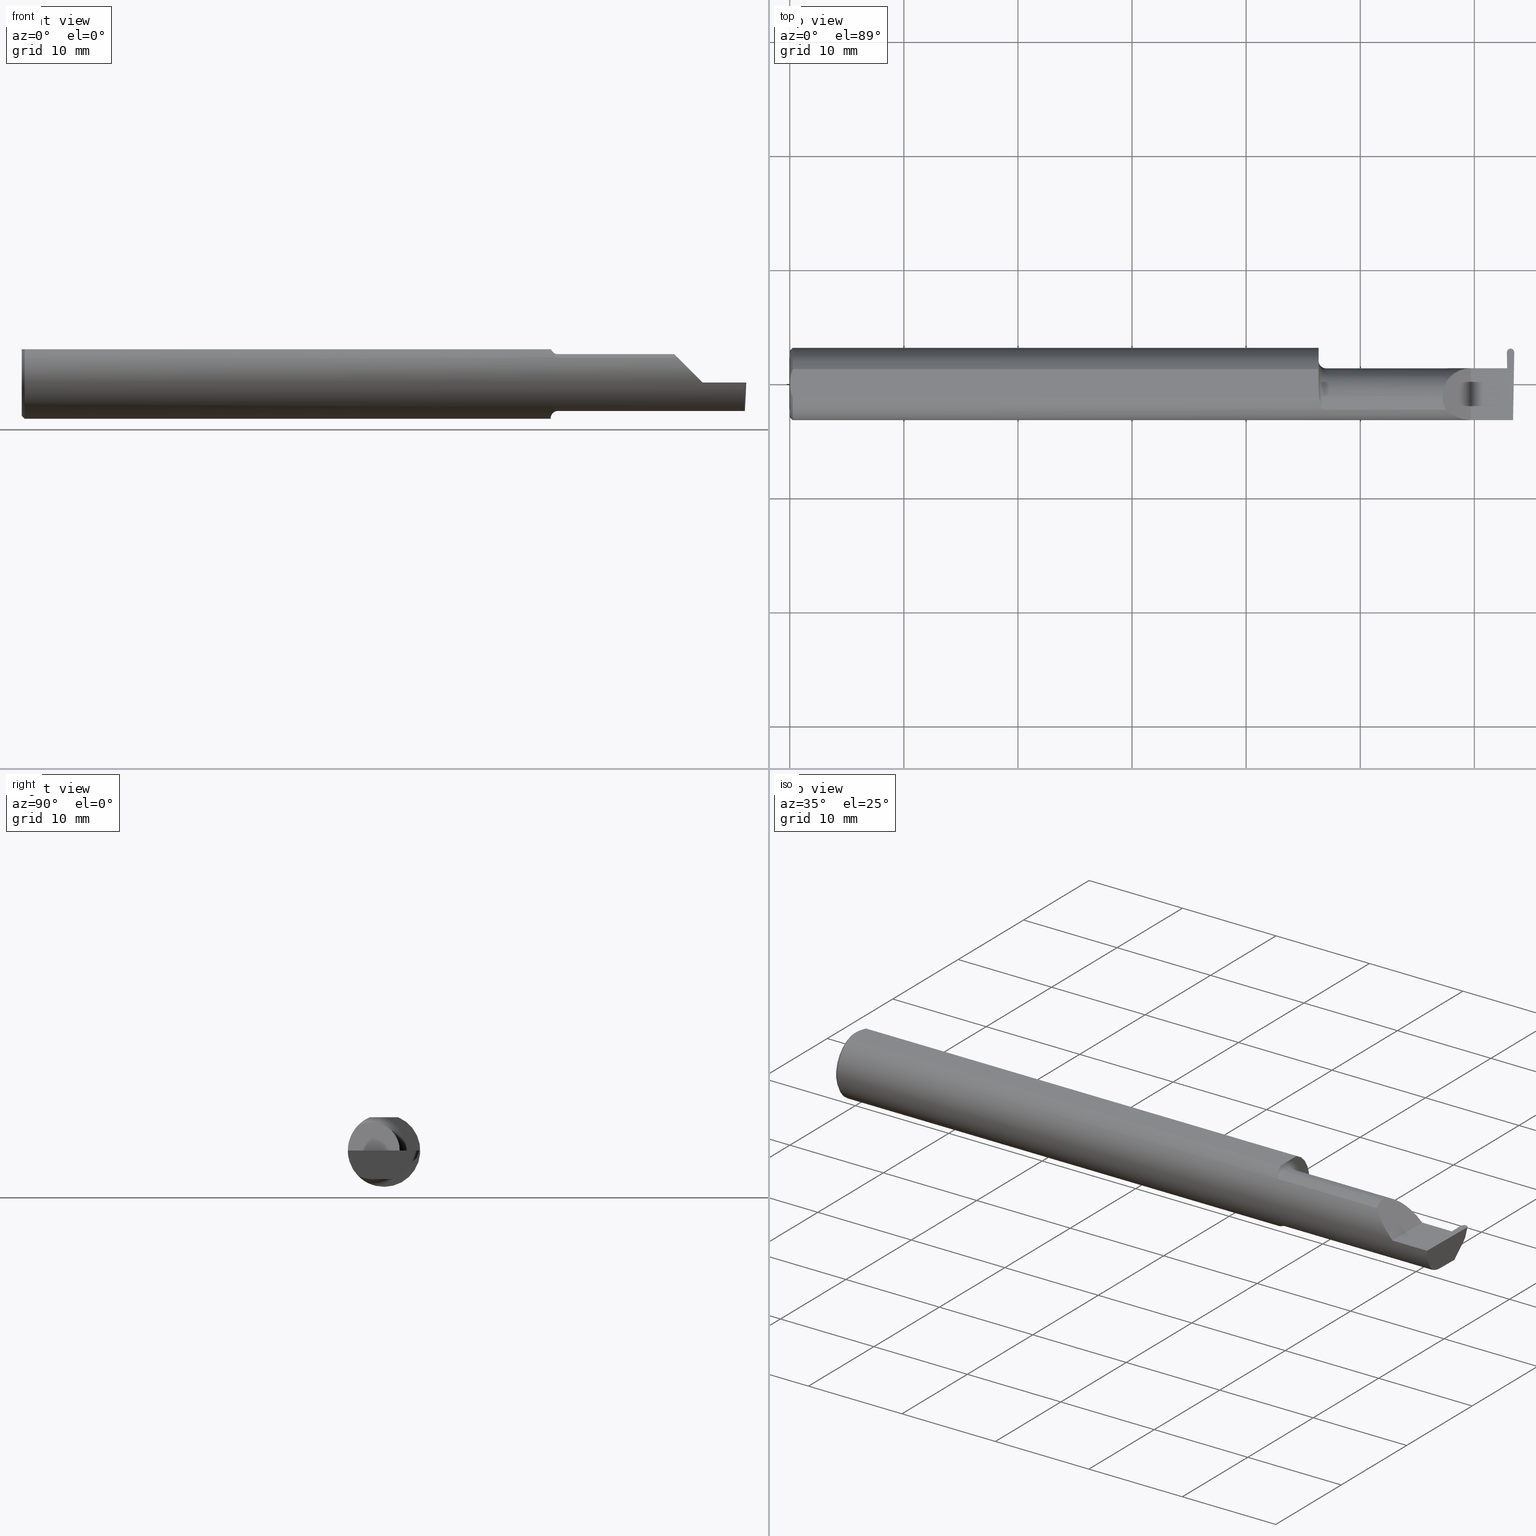
[diagram: canonical four-view strip — front | top / right | iso, engineering-drawing reading convention]
A machine part, canonical four-view strip (front | top / right | iso — engineering-drawing reading convention). The complete STEP part file that produces these views, byte-faithful:
ISO-10303-21;
HEADER;
FILE_DESCRIPTION (( 'STEP AP203' ),
    '1' );
FILE_NAME ('221921-GFR025Q-10.STEP',
    '2024-06-17T19:20:45',
    ( '' ),
    ( '' ),
    'SwSTEP 2.0',
    'SolidWorks 2022',
    '' );
FILE_SCHEMA (( 'CONFIG_CONTROL_DESIGN' ));
ENDSEC;

DATA;
#1 = DIRECTION ( 'NONE',  ( -1.000000000000000000, -0.000000000000000000, -0.000000000000000000 ) ) ;
#2 = EDGE_CURVE ( 'NONE', #615, #495, #666, .T. ) ;
#3 = ORIENTED_EDGE ( 'NONE', *, *, #649, .T. ) ;
#4 = ORIENTED_EDGE ( 'NONE', *, *, #178, .F. ) ;
#5 = DIRECTION ( 'NONE',  ( 0.000000000000000000, 0.000000000000000000, -1.000000000000000000 ) ) ;
#6 = ORIENTED_EDGE ( 'NONE', *, *, #212, .F. ) ;
#7 = EDGE_CURVE ( 'NONE', #425, #86, #341, .T. ) ;
#8 = ORIENTED_EDGE ( 'NONE', *, *, #496, .T. ) ;
#9 = EDGE_CURVE ( 'NONE', #96, #198, #217, .T. ) ;
#10 = DIRECTION ( 'NONE',  ( -0.000000000000000000, 1.000000000000000000, -0.000000000000000000 ) ) ;
#11 = ORIENTED_EDGE ( 'NONE', *, *, #184, .F. ) ;
#12 = DIRECTION ( 'NONE',  ( 0.9993699743034455407, 0.001238639365660603722, 0.03546999060124687853 ) ) ;
#13 = DATE_AND_TIME ( #75, #272 ) ;
#14 = FACE_OUTER_BOUND ( 'NONE', #679, .T. ) ;
#15 = DIRECTION ( 'NONE',  ( 0.000000000000000000, 0.000000000000000000, 1.000000000000000000 ) ) ;
#16 = ADVANCED_FACE ( 'NONE', ( #411 ), #578, .F. ) ;
#17 = COORDINATED_UNIVERSAL_TIME_OFFSET ( 8, 0, .BEHIND. ) ;
#18 =( BOUNDED_CURVE ( )  B_SPLINE_CURVE ( 3, ( #482, #489, #736, #785 ),
 .UNSPECIFIED., .F., .T. ) 
 B_SPLINE_CURVE_WITH_KNOTS ( ( 4, 4 ),
 ( 6.171327673818499449, 7.747253380535274125 ),
 .UNSPECIFIED. ) 
 CURVE ( )  GEOMETRIC_REPRESENTATION_ITEM ( )  RATIONAL_B_SPLINE_CURVE ( ( 1.000000000000000000, 0.8035272986452586252, 0.8035272986452586252, 1.000000000000000000 ) ) 
 REPRESENTATION_ITEM ( '' )  );
#19 = CARTESIAN_POINT ( 'NONE',  ( 2.487237909999999719, 0.1136933171596532927, -0.02404282012139470973 ) ) ;
#20 = ORIENTED_EDGE ( 'NONE', *, *, #440, .T. ) ;
#21 = DIRECTION ( 'NONE',  ( 1.000000000000000000, -2.759690214555744741E-15, -0.000000000000000000 ) ) ;
#22 = PERSON ( 'UNSPECIFIED', 'UNSPECIFIED', 'UNSPECIFIED', ('UNSPECIFIED'), ('UNSPECIFIED'), ('UNSPECIFIED') ) ;
#23 = FACE_OUTER_BOUND ( 'NONE', #747, .T. ) ;
#24 = CARTESIAN_POINT ( 'NONE',  ( 1.824999999999999956, -0.0003651515414570668193, 0.1149999999999999217 ) ) ;
#25 = ORIENTED_EDGE ( 'NONE', *, *, #634, .T. ) ;
#26 = CARTESIAN_POINT ( 'NONE',  ( 2.753179778023443269, 0.1250000000000000278, 0.1149999999999999217 ) ) ;
#27 = CIRCLE ( 'NONE', #490, 0.1250000000000000000 ) ;
#28 = CIRCLE ( 'NONE', #102, 0.09800000000000003153 ) ;
#29 = PERSON_AND_ORGANIZATION_ROLE ( 'classification_officer' ) ;
#30 = CARTESIAN_POINT ( 'NONE',  ( 2.493932522392288131, -0.1128945894460738342, -0.06276352435079111947 ) ) ;
#31 = AXIS2_PLACEMENT_3D ( 'NONE', #511, #183, #450 ) ;
#32 = CARTESIAN_POINT ( 'NONE',  ( 2.287236475649208511, -0.1128945894460737787, 0.06276352435079125824 ) ) ;
#33 = DATE_AND_TIME ( #155, #493 ) ;
#34 = ORIENTED_EDGE ( 'NONE', *, *, #7, .F. ) ;
#35 = DIRECTION ( 'NONE',  ( 0.000000000000000000, 0.000000000000000000, -1.000000000000000000 ) ) ;
#36 = CARTESIAN_POINT ( 'NONE',  ( 2.476316390238905374, 0.09306448537118877651, -0.04467165190985946527 ) ) ;
#37 = EDGE_CURVE ( 'NONE', #322, #62, #780, .T. ) ;
#38 = EDGE_CURVE ( 'NONE', #690, #465, #174, .T. ) ;
#39 = CARTESIAN_POINT ( 'NONE',  ( 2.475438057281342807, 0.05399999999999997163, 0.000000000000000000 ) ) ;
#40 = LINE ( 'NONE', #168, #307 ) ;
#41 = ORIENTED_EDGE ( 'NONE', *, *, #454, .F. ) ;
#42 = PERSON_AND_ORGANIZATION ( #22, #744 ) ;
#43 = CARTESIAN_POINT ( 'NONE',  ( -3.937007874019685528E-05, 0.1137361372810480054, -0.02400000000000000050 ) ) ;
#44 = DIRECTION ( 'NONE',  ( 0.000000000000000000, 0.000000000000000000, -1.000000000000000000 ) ) ;
#45 = AXIS2_PLACEMENT_3D ( 'NONE', #611, #316, #52 ) ;
#46 = CC_DESIGN_APPROVAL ( #475, ( #121 ) ) ;
#47 = PERSON_AND_ORGANIZATION_ROLE ( 'creator' ) ;
#48 = ADVANCED_FACE ( 'NONE', ( #597 ), #137, .T. ) ;
#49 = CARTESIAN_POINT ( 'NONE',  ( 1.824999999999999956, 0.05399999999999997163, 8.266365894244625705E-17 ) ) ;
#50 = ADVANCED_FACE ( 'NONE', ( #283 ), #533, .F. ) ;
#51 = LINE ( 'NONE', #541, #387 ) ;
#52 = DIRECTION ( 'NONE',  ( 0.03490480639812535563, 0.000000000000000000, -0.9993906415863165194 ) ) ;
#53 = CARTESIAN_POINT ( 'NONE',  ( 2.251999999999999336, 0.01340707088743663469, 0.09799999999999998990 ) ) ;
#54 = ORIENTED_EDGE ( 'NONE', *, *, #228, .F. ) ;
#55 = CARTESIAN_POINT ( 'NONE',  ( 0.000000000000000000, 0.04898979485566374442, 0.1149999999999999217 ) ) ;
#56 = CARTESIAN_POINT ( 'NONE',  ( 1.824999999999999956, 0.000000000000000000, 0.000000000000000000 ) ) ;
#57 = AXIS2_PLACEMENT_3D ( 'NONE', #39, #655, #740 ) ;
#58 = VERTEX_POINT ( 'NONE', #523 ) ;
#59 = FACE_OUTER_BOUND ( 'NONE', #65, .T. ) ;
#60 = DIRECTION ( 'NONE',  ( -1.000000000000000000, -0.000000000000000000, -0.000000000000000000 ) ) ;
#61 = VERTEX_POINT ( 'NONE', #773 ) ;
#62 = VERTEX_POINT ( 'NONE', #209 ) ;
#63 = FACE_OUTER_BOUND ( 'NONE', #755, .T. ) ;
#64 = DIRECTION ( 'NONE',  ( 0.000000000000000000, -0.3255681544571570885, -0.9455185755993166241 ) ) ;
#65 = EDGE_LOOP ( 'NONE', ( #248, #107, #202, #365, #438, #807 ) ) ;
#66 = FACE_OUTER_BOUND ( 'NONE', #442, .T. ) ;
#67 = LINE ( 'NONE', #569, #700 ) ;
#68 = ORIENTED_EDGE ( 'NONE', *, *, #454, .T. ) ;
#69 = CARTESIAN_POINT ( 'NONE',  ( 0.000000000000000000, 0.000000000000000000, 0.000000000000000000 ) ) ;
#70 = PLANE ( 'NONE',  #491 ) ;
#71 = DATE_AND_TIME ( #393, #771 ) ;
#72 = LINE ( 'NONE', #148, #520 ) ;
#73 = CARTESIAN_POINT ( 'NONE',  ( 2.317450832343515454, -0.1250000000000000000, 0.03254916765648425969 ) ) ;
#74 = UNCERTAINTY_MEASURE_WITH_UNIT (LENGTH_MEASURE( 1.000000000000000082E-05 ), #455, 'distance_accuracy_value', 'NONE');
#75 = CALENDAR_DATE ( 2024, 17, 6 ) ;
#76 = CARTESIAN_POINT ( 'NONE',  ( 1.849999999999999867, -0.04400000000000003214, -0.1229999999999999705 ) ) ;
#77 = VERTEX_POINT ( 'NONE', #466 ) ;
#78 = AXIS2_PLACEMENT_3D ( 'NONE', #414, #424, #44 ) ;
#79 = EDGE_CURVE ( 'NONE', #808, #133, #363, .T. ) ;
#80 = VECTOR ( 'NONE', #471, 39.37007874015748854 ) ;
#81 = FACE_OUTER_BOUND ( 'NONE', #776, .T. ) ;
#82 =( BOUNDED_CURVE ( )  B_SPLINE_CURVE ( 3, ( #19, #642, #708, #476 ),
 .UNSPECIFIED., .F., .T. ) 
 B_SPLINE_CURVE_WITH_KNOTS ( ( 4, 4 ),
 ( 3.187272100709560796, 4.698656506723038362 ),
 .UNSPECIFIED. ) 
 CURVE ( )  GEOMETRIC_REPRESENTATION_ITEM ( )  RATIONAL_B_SPLINE_CURVE ( ( 1.000000000000000000, 0.8185313399132075896, 0.8185313399132075896, 1.000000000000000000 ) ) 
 REPRESENTATION_ITEM ( '' )  );
#83 = ORIENTED_EDGE ( 'NONE', *, *, #245, .T. ) ;
#84 = CARTESIAN_POINT ( 'NONE',  ( 1.824999999999999956, -0.0003651515414570668193, 0.1149999999999999217 ) ) ;
#85 = CARTESIAN_POINT ( 'NONE',  ( 0.000000000000000000, 0.000000000000000000, 0.000000000000000000 ) ) ;
#86 = VERTEX_POINT ( 'NONE', #364 ) ;
#87 = EDGE_CURVE ( 'NONE', #453, #719, #443, .T. ) ;
#88 = VERTEX_POINT ( 'NONE', #741 ) ;
#89 = CARTESIAN_POINT ( 'NONE',  ( 2.475438057281342807, 0.05399999999999997163, 0.000000000000000000 ) ) ;
#90 = EDGE_CURVE ( 'NONE', #647, #615, #40, .T. ) ;
#91 = CARTESIAN_POINT ( 'NONE',  ( 2.474480521353160878, 0.1085065156349823701, 0.0001752603556490804973 ) ) ;
#92 = B_SPLINE_CURVE_WITH_KNOTS ( 'NONE', 3,
 ( #494, #746, #190, #250 ),
 .UNSPECIFIED., .F., .F.,
 ( 4, 4 ),
 ( 0.000000000000000000, 1.000000000000000000 ),
 .UNSPECIFIED. ) ;
#93 = CARTESIAN_POINT ( 'NONE',  ( 1.825000000000000400, 0.05376127692546633224, -0.006836134426873426151 ) ) ;
#94 = VECTOR ( 'NONE', #320, 39.37007874015748143 ) ;
#95 = CARTESIAN_POINT ( 'NONE',  ( 2.350000000000000089, 0.05399999999999997163, 8.266365894244625705E-17 ) ) ;
#96 = VERTEX_POINT ( 'NONE', #353 ) ;
#97 = PERSON_AND_ORGANIZATION ( #22, #744 ) ;
#98 = CARTESIAN_POINT ( 'NONE',  ( 2.487237909999999275, 0.1206404580714356134, -0.003948396457592995464 ) ) ;
#99 = CARTESIAN_POINT ( 'NONE',  ( 1.849999999999999867, -0.04400000000000004602, 0.000000000000000000 ) ) ;
#100 = DIRECTION ( 'NONE',  ( -1.000000000000000000, -0.000000000000000000, -0.000000000000000000 ) ) ;
#101 = ADVANCED_FACE ( 'NONE', ( #609 ), #667, .T. ) ;
#102 = AXIS2_PLACEMENT_3D ( 'NONE', #376, #682, #456 ) ;
#103 = ORIENTED_EDGE ( 'NONE', *, *, #538, .F. ) ;
#104 = LINE ( 'NONE', #735, #580 ) ;
#105 = CARTESIAN_POINT ( 'NONE',  ( 1.835190181894028605, -0.07991573988362411785, -0.09622915934337318566 ) ) ;
#106 = VECTOR ( 'NONE', #527, 39.37007874015748854 ) ;
#107 = ORIENTED_EDGE ( 'NONE', *, *, #720, .T. ) ;
#108 = EDGE_LOOP ( 'NONE', ( #782, #628, #620, #358 ) ) ;
#109 = CARTESIAN_POINT ( 'NONE',  ( 1.826314561435346207, -0.04400000000000004602, 0.1149999999999999217 ) ) ;
#110 = CARTESIAN_POINT ( 'NONE',  ( 1.849999999999999867, -0.09042045454545430405, 0.08630840862739518060 ) ) ;
#111 = LINE ( 'NONE', #309, #271 ) ;
#112 = CARTESIAN_POINT ( 'NONE',  ( 2.471842428817318638, 0.1784761476628669574, 0.04074001038181967321 ) ) ;
#113 = EDGE_LOOP ( 'NONE', ( #529, #386, #278, #458, #750, #6 ) ) ;
#114 = CARTESIAN_POINT ( 'NONE',  ( 1.825234743326751952, -0.03866586649758532029, -0.1190059989239850707 ) ) ;
#115 = CLOSED_SHELL ( 'NONE', ( #16, #730, #811, #267, #500, #468, #662, #709, #419, #48, #469, #354, #589, #378, #101, #727, #238, #539, #701, #342, #50, #326, #218 ) ) ;
#116 = CYLINDRICAL_SURFACE ( 'NONE', #389, 0.01275000000000000092 ) ;
#117 = VECTOR ( 'NONE', #605, 39.37007874015748143 ) ;
#118 = EDGE_CURVE ( 'NONE', #86, #508, #562, .T. ) ;
#119 = ORIENTED_EDGE ( 'NONE', *, *, #583, .T. ) ;
#120 = CIRCLE ( 'NONE', #446, 0.02499999999999993894 ) ;
#121 = PRODUCT_DEFINITION_FORMATION_WITH_SPECIFIED_SOURCE ( 'ANY', '', #289, .NOT_KNOWN. ) ;
#122 = CC_DESIGN_PERSON_AND_ORGANIZATION_ASSIGNMENT ( #723, #786, ( #121 ) ) ;
#123 = DIRECTION ( 'NONE',  ( -1.000000000000000000, -0.000000000000000000, -0.000000000000000000 ) ) ;
#124 = CYLINDRICAL_SURFACE ( 'NONE', #790, 0.09800000000000003153 ) ;
#125 = ORIENTED_EDGE ( 'NONE', *, *, #219, .T. ) ;
#126 =( BOUNDED_CURVE ( )  B_SPLINE_CURVE ( 3, ( #681, #801, #686, #566 ),
 .UNSPECIFIED., .F., .F. ) 
 B_SPLINE_CURVE_WITH_KNOTS ( ( 4, 4 ),
 ( 6.253187659403680598, 6.746650124384971470 ),
 .UNSPECIFIED. ) 
 CURVE ( )  GEOMETRIC_REPRESENTATION_ITEM ( )  RATIONAL_B_SPLINE_CURVE ( ( 1.000000000000000000, 0.9798106333074687591, 0.9798106333074687591, 1.000000000000000000 ) ) 
 REPRESENTATION_ITEM ( '' )  );
#127 = CARTESIAN_POINT ( 'NONE',  ( 0.000000000000000000, -0.04898979485566374442, 0.1149999999999999217 ) ) ;
#128 = CARTESIAN_POINT ( 'NONE',  ( 1.824999999999999956, -0.04400000000000003908, -0.09800000000000003153 ) ) ;
#129 = VERTEX_POINT ( 'NONE', #291 ) ;
#130 = ORIENTED_EDGE ( 'NONE', *, *, #315, .T. ) ;
#131 = CARTESIAN_POINT ( 'NONE',  ( 2.483355752434689645, 0.1412390592022552127, 0.09503659196759346728 ) ) ;
#132 = AXIS2_PLACEMENT_3D ( 'NONE', #348, #599, #486 ) ;
#133 = VERTEX_POINT ( 'NONE', #537 ) ;
#134 = EDGE_LOOP ( 'NONE', ( #256, #739, #119, #165 ) ) ;
#135 = CARTESIAN_POINT ( 'NONE',  ( -3.937007874019685528E-05, 0.1219999999999999835, 0.000000000000000000 ) ) ;
#136 = EDGE_LOOP ( 'NONE', ( #737, #34, #473, #715, #613 ) ) ;
#137 = PLANE ( 'NONE',  #226 ) ;
#138 = COORDINATED_UNIVERSAL_TIME_OFFSET ( 8, 0, .BEHIND. ) ;
#139 = CARTESIAN_POINT ( 'NONE',  ( 2.255977500337024377, -0.07607783494366260335, 0.09402249966297457351 ) ) ;
#140 = ADVANCED_BREP_SHAPE_REPRESENTATION ( '221921-GFR025Q-10', ( #280, #404 ), #568 ) ;
#141 = EDGE_CURVE ( 'NONE', #814, #425, #18, .T. ) ;
#142 = CARTESIAN_POINT ( 'NONE',  ( 1.826278290187167919, -0.04898979485482030799, 0.1149999999999999217 ) ) ;
#143 = CARTESIAN_POINT ( 'NONE',  ( 2.493502479154698914, -0.09042045454545441507, -0.08630840862739512509 ) ) ;
#144 = ORIENTED_EDGE ( 'NONE', *, *, #604, .T. ) ;
#145 = ORIENTED_EDGE ( 'NONE', *, *, #327, .T. ) ;
#146 = LENGTH_MEASURE_WITH_UNIT ( LENGTH_MEASURE( 0.02539999999999999897 ), #696 );
#147 = LOCAL_TIME ( 12, 20, 45.00000000000000000, #292 ) ;
#148 = CARTESIAN_POINT ( 'NONE',  ( 2.483678534731667664, 0.09070151142847178438, -0.09089741096424447386 ) ) ;
#149 = VERTEX_POINT ( 'NONE', #544 ) ;
#150 = DIRECTION ( 'NONE',  ( 0.03867711768362880331, -0.3253245514560478280, -0.9448111011136606230 ) ) ;
#151 = EDGE_CURVE ( 'NONE', #719, #743, #344, .T. ) ;
#152 = B_SPLINE_CURVE_WITH_KNOTS ( 'NONE', 3,
 ( #796, #788, #225, #420, #812, #630 ),
 .UNSPECIFIED., .F., .F.,
 ( 4, 2, 4 ),
 ( 0.001061950514642623312, 0.001696734447512964709, 0.002331518380383306322 ),
 .UNSPECIFIED. ) ;
#153 = CARTESIAN_POINT ( 'NONE',  ( 2.487237909999999275, 0.1206404580714356134, -0.003948396457592995464 ) ) ;
#154 = ORIENTED_EDGE ( 'NONE', *, *, #156, .F. ) ;
#155 = CALENDAR_DATE ( 2024, 17, 6 ) ;
#156 = EDGE_CURVE ( 'NONE', #77, #198, #733, .T. ) ;
#157 = DIRECTION ( 'NONE',  ( 1.000000000000000000, 0.000000000000000000, 0.000000000000000000 ) ) ;
#158 = CARTESIAN_POINT ( 'NONE',  ( 2.292592929112562405, 0.05399999999999997163, 0.05740707088743673275 ) ) ;
#159 = ORIENTED_EDGE ( 'NONE', *, *, #752, .F. ) ;
#160 = AXIS2_PLACEMENT_3D ( 'NONE', #763, #557, #802 ) ;
#161 = APPROVAL_DATE_TIME ( #351, #475 ) ;
#162 = CIRCLE ( 'NONE', #31, 0.1229999999999999705 ) ;
#163 = CARTESIAN_POINT ( 'NONE',  ( 2.478970497252991123, 0.01027834358092160651, -0.09800000000000004541 ) ) ;
#164 = DIRECTION ( 'NONE',  ( -1.000000000000000000, -0.000000000000000000, -0.000000000000000000 ) ) ;
#165 = ORIENTED_EDGE ( 'NONE', *, *, #212, .T. ) ;
#166 = APPROVAL_ROLE ( '' ) ;
#167 = CARTESIAN_POINT ( 'NONE',  ( 2.494904346843567211, 0.1219999999999999557, -1.801393336792326575E-17 ) ) ;
#168 = CARTESIAN_POINT ( 'NONE',  ( 3.749399456654637998E-32, -0.1249999999999999861, 3.061616997868380183E-16 ) ) ;
#169 = ORIENTED_EDGE ( 'NONE', *, *, #156, .T. ) ;
#170 = APPROVAL_STATUS ( 'not_yet_approved' ) ;
#171 = DIRECTION ( 'NONE',  ( 1.000000000000000000, -0.000000000000000000, -0.000000000000000000 ) ) ;
#172 = CARTESIAN_POINT ( 'NONE',  ( 2.474477763728121893, 0.1090151808183310173, 0.000000000000000000 ) ) ;
#173 = ORIENTED_EDGE ( 'NONE', *, *, #219, .F. ) ;
#174 = B_SPLINE_CURVE_WITH_KNOTS ( 'NONE', 3,
 ( #644, #346, #591, #706, #651, #84 ),
 .UNSPECIFIED., .F., .F.,
 ( 4, 2, 4 ),
 ( 0.009445492519198586678, 0.009997058688341184038, 0.01054862485748378140 ),
 .UNSPECIFIED. ) ;
#175 = ORIENTED_EDGE ( 'NONE', *, *, #178, .T. ) ;
#176 = DIRECTION ( 'NONE',  ( 1.000000000000000000, 0.000000000000000000, 0.000000000000000000 ) ) ;
#177 = EDGE_CURVE ( 'NONE', #258, #768, #51, .T. ) ;
#178 = EDGE_CURVE ( 'NONE', #198, #425, #429, .T. ) ;
#179 = CARTESIAN_POINT ( 'NONE',  ( 1.849999999999999867, -0.04400000000000004602, 0.1229999999999999705 ) ) ;
#180 = DIRECTION ( 'NONE',  ( 0.000000000000000000, 0.000000000000000000, -1.000000000000000000 ) ) ;
#181 = EDGE_LOOP ( 'NONE', ( #368, #244, #145, #234, #382, #381 ) ) ;
#182 = EDGE_CURVE ( 'NONE', #635, #61, #809, .T. ) ;
#183 = DIRECTION ( 'NONE',  ( -1.000000000000000000, -0.000000000000000000, -0.000000000000000000 ) ) ;
#184 = EDGE_CURVE ( 'NONE', #767, #129, #152, .T. ) ;
#185 = LINE ( 'NONE', #214, #227 ) ;
#186 = ORIENTED_EDGE ( 'NONE', *, *, #440, .F. ) ;
#187 = CC_DESIGN_PERSON_AND_ORGANIZATION_ASSIGNMENT ( #645, #263, ( #289 ) ) ;
#188 = DIRECTION ( 'NONE',  ( 0.000000000000000000, -1.000000000000000000, 0.000000000000000000 ) ) ;
#189 = AXIS2_PLACEMENT_3D ( 'NONE', #783, #409, #15 ) ;
#190 = CARTESIAN_POINT ( 'NONE',  ( 2.469171538508045938, 0.05392042564182091685, -0.002278711475641423054 ) ) ;
#191 = VECTOR ( 'NONE', #646, 39.37007874015748854 ) ;
#192 = ORIENTED_EDGE ( 'NONE', *, *, #184, .T. ) ;
#193 = VECTOR ( 'NONE', #352, 39.37007874015748143 ) ;
#194 = ORIENTED_EDGE ( 'NONE', *, *, #738, .T. ) ;
#195 = APPROVAL_PERSON_ORGANIZATION ( #774, #475, #640 ) ;
#196 = DIRECTION ( 'NONE',  ( 0.000000000000000000, 0.000000000000000000, -1.000000000000000000 ) ) ;
#197 = CARTESIAN_POINT ( 'NONE',  ( 1.642610067308552155E-16, 0.01684316307400865464, 0.1149999999999999217 ) ) ;
#198 = VERTEX_POINT ( 'NONE', #305 ) ;
#199 = LINE ( 'NONE', #407, #106 ) ;
#200 = CARTESIAN_POINT ( 'NONE',  ( 1.849999999999999867, -0.04400000000000004602, 0.09800000000000003153 ) ) ;
#201 = ORIENTED_EDGE ( 'NONE', *, *, #720, .F. ) ;
#202 = ORIENTED_EDGE ( 'NONE', *, *, #649, .F. ) ;
#203 = CARTESIAN_POINT ( 'NONE',  ( 1.824999999999999956, -0.04400000000000004602, 0.000000000000000000 ) ) ;
#204 = CARTESIAN_POINT ( 'NONE',  ( 2.499998056271878877, 0.1090151808183310173, 0.000000000000000000 ) ) ;
#205 = CONICAL_SURFACE ( 'NONE', #373, 0.1149999999999997274, 0.7853981633974407295 ) ;
#206 = AXIS2_PLACEMENT_3D ( 'NONE', #253, #499, #439 ) ;
#207 = APPLICATION_PROTOCOL_DEFINITION ( 'international standard', 'config_control_design', 1994, #627 ) ;
#208 = DIRECTION ( 'NONE',  ( 1.000000000000000000, 0.000000000000000000, 0.000000000000000000 ) ) ;
#209 = CARTESIAN_POINT ( 'NONE',  ( 0.01000000000000042348, 0.000000000000000000, -0.1250000000000000000 ) ) ;
#210 = APPROVAL_STATUS ( 'not_yet_approved' ) ;
#211 = DIRECTION ( 'NONE',  ( 0.03490480639812536257, 0.000000000000000000, 0.9993906415863165194 ) ) ;
#212 = EDGE_CURVE ( 'NONE', #624, #58, #501, .T. ) ;
#213 =( NAMED_UNIT ( * ) SI_UNIT ( $, .STERADIAN. ) SOLID_ANGLE_UNIT ( ) );
#214 = CARTESIAN_POINT ( 'NONE',  ( 1.824999999999999956, 0.1250000000000000278, 0.1149999999999999217 ) ) ;
#215 = ORIENTED_EDGE ( 'NONE', *, *, #87, .F. ) ;
#216 = DIRECTION ( 'NONE',  ( 0.000000000000000000, 0.000000000000000000, 1.000000000000000000 ) ) ;
#217 = LINE ( 'NONE', #331, #333 ) ;
#218 = ADVANCED_FACE ( 'NONE', ( #506 ), #116, .T. ) ;
#219 = EDGE_CURVE ( 'NONE', #133, #266, #28, .T. ) ;
#220 = COORDINATED_UNIVERSAL_TIME_OFFSET ( 8, 0, .BEHIND. ) ;
#221 = CARTESIAN_POINT ( 'NONE',  ( 2.487237909999999719, 0.1136933171596532927, -0.02404282012139470973 ) ) ;
#222 = CARTESIAN_POINT ( 'NONE',  ( 2.480162286116728065, 0.1129524239477167208, -0.02478371333333134058 ) ) ;
#223 = EDGE_LOOP ( 'NONE', ( #377, #695, #515 ) ) ;
#224 = CARTESIAN_POINT ( 'NONE',  ( 2.479037770930198725, -0.04400000000000004602, -0.09800000000000001765 ) ) ;
#225 = CARTESIAN_POINT ( 'NONE',  ( 0.004414142251465132810, -0.03315347577847933824, 0.1149999999999999356 ) ) ;
#226 = AXIS2_PLACEMENT_3D ( 'NONE', #26, #335, #396 ) ;
#227 = VECTOR ( 'NONE', #584, 39.37007874015748143 ) ;
#228 = EDGE_CURVE ( 'NONE', #426, #726, #27, .T. ) ;
#229 = AXIS2_PLACEMENT_3D ( 'NONE', #497, #246, #762 ) ;
#230 = CARTESIAN_POINT ( 'NONE',  ( 2.263691591372603895, -0.09042045454545419303, 0.08630840862739529162 ) ) ;
#231 = CARTESIAN_POINT ( 'NONE',  ( 1.839282510427138639, -0.08510692115743009878, -0.09158169095606859267 ) ) ;
#232 = LINE ( 'NONE', #665, #522 ) ;
#233 = CARTESIAN_POINT ( 'NONE',  ( 1.849999999999999867, -0.09042045454545437344, -0.08630840862739513897 ) ) ;
#234 = ORIENTED_EDGE ( 'NONE', *, *, #403, .T. ) ;
#235 = CC_DESIGN_PERSON_AND_ORGANIZATION_ASSIGNMENT ( #286, #47, ( #121 ) ) ;
#236 = CARTESIAN_POINT ( 'NONE',  ( 2.499988124127622946, 0.1084461686550173415, 0.000000000000000000 ) ) ;
#237 = CARTESIAN_POINT ( 'NONE',  ( 1.830023755285530740, -0.06757875350159910088, -0.1052824340695055066 ) ) ;
#238 = ADVANCED_FACE ( 'NONE', ( #758 ), #390, .F. ) ;
#239 = EDGE_CURVE ( 'NONE', #129, #684, #629, .T. ) ;
#240 = VECTOR ( 'NONE', #384, 39.37007874015748143 ) ;
#241 = DIRECTION ( 'NONE',  ( 0.000000000000000000, 0.000000000000000000, 1.000000000000000000 ) ) ;
#242 = DIRECTION ( 'NONE',  ( 0.000000000000000000, -0.9455185755993166241, 0.3255681544571570885 ) ) ;
#243 = AXIS2_PLACEMENT_3D ( 'NONE', #668, #100, #608 ) ;
#244 = ORIENTED_EDGE ( 'NONE', *, *, #118, .T. ) ;
#245 = EDGE_CURVE ( 'NONE', #319, #96, #92, .T. ) ;
#246 = DIRECTION ( 'NONE',  ( 1.000000000000000000, 0.000000000000000000, 0.000000000000000000 ) ) ;
#247 = DIRECTION ( 'NONE',  ( -0.01745240643727864055, -0.9998476951563912696, 0.000000000000000000 ) ) ;
#248 = ORIENTED_EDGE ( 'NONE', *, *, #388, .F. ) ;
#249 = LINE ( 'NONE', #127, #616 ) ;
#250 = CARTESIAN_POINT ( 'NONE',  ( 2.469251112866224673, 0.05399999999999999245, 0.000000000000000000 ) ) ;
#251 = ORIENTED_EDGE ( 'NONE', *, *, #302, .F. ) ;
#252 = ORIENTED_EDGE ( 'NONE', *, *, #182, .T. ) ;
#253 = CARTESIAN_POINT ( 'NONE',  ( 2.350000000000000089, -0.2500000000000000555, 1.836970198721028825E-17 ) ) ;
#254 = EDGE_CURVE ( 'NONE', #808, #690, #435, .T. ) ;
#255 = CARTESIAN_POINT ( 'NONE',  ( 1.826299368641400855, -0.04732662288241423765, 0.1149999999999999356 ) ) ;
#256 = ORIENTED_EDGE ( 'NONE', *, *, #779, .T. ) ;
#257 = VECTOR ( 'NONE', #478, 39.37007874015748143 ) ;
#258 = VERTEX_POINT ( 'NONE', #622 ) ;
#259 = APPROVAL_PERSON_ORGANIZATION ( #42, #369, #166 ) ;
#260 = DIRECTION ( 'NONE',  ( -1.000000000000000000, -0.000000000000000000, -0.000000000000000000 ) ) ;
#261 = CARTESIAN_POINT ( 'NONE',  ( 0.000000000000000000, 0.000000000000000000, -0.1149999999999997274 ) ) ;
#262 = ORIENTED_EDGE ( 'NONE', *, *, #547, .F. ) ;
#263 = PERSON_AND_ORGANIZATION_ROLE ( 'design_owner' ) ;
#264 = LINE ( 'NONE', #135, #756 ) ;
#265 = EDGE_LOOP ( 'NONE', ( #699, #372, #532, #192 ) ) ;
#266 = VERTEX_POINT ( 'NONE', #200 ) ;
#267 = ADVANCED_FACE ( 'NONE', ( #614 ), #124, .T. ) ;
#268 = CARTESIAN_POINT ( 'NONE',  ( 1.826278290187167919, -0.04898979485482030799, 0.1149999999999999217 ) ) ;
#269 = CARTESIAN_POINT ( 'NONE',  ( 2.487237909999999719, 0.1183311075937133056, -0.01065523723535988752 ) ) ;
#270 = DIRECTION ( 'NONE',  ( 0.03547001781079529847, 0.000000000000000000, -0.9993707409347653003 ) ) ;
#271 = VECTOR ( 'NONE', #10, 39.37007874015748143 ) ;
#272 = LOCAL_TIME ( 12, 20, 45.00000000000000000, #398 ) ;
#273 = MECHANICAL_CONTEXT ( 'NONE', #627, 'mechanical' ) ;
#274 = APPROVAL ( #463, 'UNSPECIFIED' ) ;
#275 = CARTESIAN_POINT ( 'NONE',  ( 2.350000000000000089, -0.1250000000000000278, 1.836970198721028825E-17 ) ) ;
#276 = CYLINDRICAL_SURFACE ( 'NONE', #375, 0.09800000000000003153 ) ;
#277 = CARTESIAN_POINT ( 'NONE',  ( 1.849999999999999867, -0.04400000000000004602, 0.000000000000000000 ) ) ;
#278 = ORIENTED_EDGE ( 'NONE', *, *, #282, .T. ) ;
#279 = ORIENTED_EDGE ( 'NONE', *, *, #496, .F. ) ;
#280 = MANIFOLD_SOLID_BREP ( 'Radii', #115 ) ;
#281 = CARTESIAN_POINT ( 'NONE',  ( 2.487399542938343089, 0.1219999999999999835, 0.000000000000000000 ) ) ;
#282 = EDGE_CURVE ( 'NONE', #643, #647, #678, .T. ) ;
#283 = FACE_OUTER_BOUND ( 'NONE', #610, .T. ) ;
#284 = AXIS2_PLACEMENT_3D ( 'NONE', #99, #669, #294 ) ;
#285 = VECTOR ( 'NONE', #260, 39.37007874015748143 ) ;
#286 = PERSON_AND_ORGANIZATION ( #22, #744 ) ;
#287 = CARTESIAN_POINT ( 'NONE',  ( 2.493502479154698914, -0.09042045454545441507, -0.08630840862739512509 ) ) ;
#288 = ORIENTED_EDGE ( 'NONE', *, *, #534, .F. ) ;
#289 = PRODUCT ( '221921-GFR025Q-10', '221921-GFR025Q-10', '', ( #273 ) ) ;
#290 = FACE_OUTER_BOUND ( 'NONE', #710, .T. ) ;
#291 = CARTESIAN_POINT ( 'NONE',  ( 0.000000000000000000, 3.414809992080329023E-17, 0.1149999999999999217 ) ) ;
#292 = COORDINATED_UNIVERSAL_TIME_OFFSET ( 8, 0, .BEHIND. ) ;
#293 = FACE_OUTER_BOUND ( 'NONE', #265, .T. ) ;
#294 = DIRECTION ( 'NONE',  ( 0.000000000000000000, 0.000000000000000000, 1.000000000000000000 ) ) ;
#295 = EDGE_LOOP ( 'NONE', ( #194, #503, #449, #759, #654, #672, #11 ) ) ;
#296 = VECTOR ( 'NONE', #626, 39.37007874015748854 ) ;
#297 = EDGE_CURVE ( 'NONE', #88, #453, #564, .T. ) ;
#298 = DIRECTION ( 'NONE',  ( -1.000000000000000000, -0.000000000000000000, -0.000000000000000000 ) ) ;
#299 = CARTESIAN_POINT ( 'NONE',  ( 1.845169762358873644, -0.08954173371311466290, 0.08723520050116025104 ) ) ;
#300 = CALENDAR_DATE ( 2024, 17, 6 ) ;
#301 = CARTESIAN_POINT ( 'NONE',  ( 2.495913306096507522, -0.1250000000000000000, 0.000000000000000000 ) ) ;
#302 = EDGE_CURVE ( 'NONE', #768, #86, #697, .T. ) ;
#303 = DIRECTION ( 'NONE',  ( -0.01745240643727214228, 0.9998476951563914916, -0.000000000000000000 ) ) ;
#304 = CARTESIAN_POINT ( 'NONE',  ( 1.849999999999999867, -0.09042045454545437344, -0.08630840862739513897 ) ) ;
#305 = CARTESIAN_POINT ( 'NONE',  ( 2.475438057281342807, 0.05399999999999997163, 0.000000000000000000 ) ) ;
#306 = ORIENTED_EDGE ( 'NONE', *, *, #567, .F. ) ;
#307 = VECTOR ( 'NONE', #164, 39.37007874015748143 ) ;
#308 = AXIS2_PLACEMENT_3D ( 'NONE', #85, #778, #5 ) ;
#309 = CARTESIAN_POINT ( 'NONE',  ( 2.350000000000000089, -0.2500000000000000555, 1.836970198721028825E-17 ) ) ;
#310 = CIRCLE ( 'NONE', #336, 0.1149999999999997274 ) ;
#311 = DIRECTION ( 'NONE',  ( 0.000000000000000000, -0.9455185755993165131, 0.3255681544571575325 ) ) ;
#312 = ORIENTED_EDGE ( 'NONE', *, *, #90, .F. ) ;
#313 = CARTESIAN_POINT ( 'NONE',  ( 1.824999999999999956, -0.04400000000000004602, 0.000000000000000000 ) ) ;
#314 = ORIENTED_EDGE ( 'NONE', *, *, #661, .T. ) ;
#315 = EDGE_CURVE ( 'NONE', #635, #266, #67, .T. ) ;
#316 = DIRECTION ( 'NONE',  ( 0.9992386149554828290, 0.01744177490281879211, 0.03489949670250104552 ) ) ;
#317 = CARTESIAN_POINT ( 'NONE',  ( 2.499998056271878877, 0.1090151808183310173, 0.000000000000000000 ) ) ;
#318 = ORIENTED_EDGE ( 'NONE', *, *, #412, .F. ) ;
#319 = VERTEX_POINT ( 'NONE', #749 ) ;
#320 = DIRECTION ( 'NONE',  ( 1.000000000000000000, 0.000000000000000000, 0.000000000000000000 ) ) ;
#321 = CARTESIAN_POINT ( 'NONE',  ( 1.826314561435345762, -0.04483155449642588219, 0.1149999999999999356 ) ) ;
#322 = VERTEX_POINT ( 'NONE', #261 ) ;
#323 = DIRECTION ( 'NONE',  ( -1.000000000000000000, -0.000000000000000000, -0.000000000000000000 ) ) ;
#324 =( BOUNDED_CURVE ( )  B_SPLINE_CURVE ( 3, ( #224, #163, #418, #659 ),
 .UNSPECIFIED., .F., .T. ) 
 B_SPLINE_CURVE_WITH_KNOTS ( ( 4, 4 ),
 ( 3.176499238629679756, 4.677482395344806143 ),
 .UNSPECIFIED. ) 
 CURVE ( )  GEOMETRIC_REPRESENTATION_ITEM ( )  RATIONAL_B_SPLINE_CURVE ( ( 1.000000000000000000, 0.8209024677461128627, 0.8209024677461128627, 1.000000000000000000 ) ) 
 REPRESENTATION_ITEM ( '' )  );
#325 = DIRECTION ( 'NONE',  ( -1.000000000000000000, -0.000000000000000000, -0.000000000000000000 ) ) ;
#326 = ADVANCED_FACE ( 'NONE', ( #371 ), #512, .T. ) ;
#327 = EDGE_CURVE ( 'NONE', #508, #149, #82, .T. ) ;
#328 = PERSON_AND_ORGANIZATION ( #22, #744 ) ;
#329 = CARTESIAN_POINT ( 'NONE',  ( 1.824999999999999956, -0.02763636363636371579, -0.1219066503721543404 ) ) ;
#330 = EDGE_CURVE ( 'NONE', #465, #726, #185, .T. ) ;
#331 = CARTESIAN_POINT ( 'NONE',  ( 2.475438057281342807, 0.05399999999999997163, 0.000000000000000000 ) ) ;
#332 = CARTESIAN_POINT ( 'NONE',  ( 2.500000000000000000, -0.2500000000000000555, 0.000000000000000000 ) ) ;
#333 = VECTOR ( 'NONE', #21, 39.37007874015748143 ) ;
#334 = AXIS2_PLACEMENT_3D ( 'NONE', #43, #784, #732 ) ;
#335 = DIRECTION ( 'NONE',  ( 0.000000000000000000, 0.000000000000000000, 1.000000000000000000 ) ) ;
#336 = AXIS2_PLACEMENT_3D ( 'NONE', #445, #366, #196 ) ;
#337 = APPROVAL_PERSON_ORGANIZATION ( #777, #274, #632 ) ;
#338 =( NAMED_UNIT ( * ) PLANE_ANGLE_UNIT ( ) SI_UNIT ( $, .RADIAN. ) );
#339 = LINE ( 'NONE', #528, #80 ) ;
#340 = EDGE_LOOP ( 'NONE', ( #552, #318, #576, #385 ) ) ;
#341 = LINE ( 'NONE', #91, #813 ) ;
#342 = ADVANCED_FACE ( 'NONE', ( #721 ), #766, .F. ) ;
#343 = DIRECTION ( 'NONE',  ( 1.000000000000000000, 0.000000000000000000, 0.000000000000000000 ) ) ;
#344 = B_SPLINE_CURVE_WITH_KNOTS ( 'NONE', 3,
 ( #233, #479, #434, #791, #231, #105, #485, #237, #725, #675, #657, #367 ),
 .UNSPECIFIED., .F., .F.,
 ( 4, 2, 2, 2, 2, 4 ),
 ( 1.964009442425878487E-07, 0.0002059214671021853500, 0.0004116465332601281077, 0.0008230966655760250071, 0.001234546797891921581, 0.001645996930207818589 ),
 .UNSPECIFIED. ) ;
#345 = DIRECTION ( 'NONE',  ( 0.000000000000000000, 0.000000000000000000, 1.000000000000000000 ) ) ;
#346 = CARTESIAN_POINT ( 'NONE',  ( 1.826314561435345762, -0.03672135622230197904, 0.1149999999999999356 ) ) ;
#347 = ORIENTED_EDGE ( 'NONE', *, *, #7, .T. ) ;
#348 = CARTESIAN_POINT ( 'NONE',  ( 0.000000000000000000, 0.000000000000000000, 0.000000000000000000 ) ) ;
#349 = ORIENTED_EDGE ( 'NONE', *, *, #2, .T. ) ;
#350 = CIRCLE ( 'NONE', #769, 0.02499999999999993894 ) ;
#351 = DATE_AND_TIME ( #607, #406 ) ;
#352 = DIRECTION ( 'NONE',  ( -1.000000000000000000, -0.000000000000000000, -0.000000000000000000 ) ) ;
#353 = CARTESIAN_POINT ( 'NONE',  ( 2.469251112866224673, 0.05399999999999999245, 0.000000000000000000 ) ) ;
#354 = ADVANCED_FACE ( 'NONE', ( #81 ), #70, .F. ) ;
#355 = SECURITY_CLASSIFICATION_LEVEL ( 'unclassified' ) ;
#356 = CARTESIAN_POINT ( 'NONE',  ( 2.495366029356153703, 0.03973613728104880699, -0.09800000000000001765 ) ) ;
#357 = CARTESIAN_POINT ( 'NONE',  ( 1.839945076695470139, -0.08578123596776277004, 0.09094459933485994629 ) ) ;
#358 = ORIENTED_EDGE ( 'NONE', *, *, #182, .F. ) ;
#359 = EDGE_CURVE ( 'NONE', #495, #635, #427, .T. ) ;
#360 = CARTESIAN_POINT ( 'NONE',  ( 2.487399542938343089, 0.1219999999999999835, 0.000000000000000000 ) ) ;
#361 = CARTESIAN_POINT ( 'NONE',  ( 2.475438057281342807, 0.05399999999999997163, 0.000000000000000000 ) ) ;
#362 = ORIENTED_EDGE ( 'NONE', *, *, #254, .F. ) ;
#363 = B_SPLINE_CURVE_WITH_KNOTS ( 'NONE', 3,
 ( #142, #400, #638, #600, #731, #357, #487, #299, #602, #110 ),
 .UNSPECIFIED., .F., .F.,
 ( 4, 2, 2, 2, 4 ),
 ( 5.067393806483457764E-07, 0.0007430328995834972359, 0.001114295979684921251, 0.001299927519735632553, 0.001485559059786344289 ),
 .UNSPECIFIED. ) ;
#364 = CARTESIAN_POINT ( 'NONE',  ( 2.476316390238905374, 0.09306448537118877651, -0.04467165190985946527 ) ) ;
#365 = ORIENTED_EDGE ( 'NONE', *, *, #38, .F. ) ;
#366 = DIRECTION ( 'NONE',  ( -1.000000000000000000, -0.000000000000000000, -0.000000000000000000 ) ) ;
#367 = CARTESIAN_POINT ( 'NONE',  ( 1.825730677800976975, -0.04400000000000004602, -0.1169999999999999790 ) ) ;
#368 = ORIENTED_EDGE ( 'NONE', *, *, #302, .T. ) ;
#369 = APPROVAL ( #170, 'UNSPECIFIED' ) ;
#370 = CYLINDRICAL_SURFACE ( 'NONE', #770, 0.1250000000000000000 ) ;
#371 = FACE_OUTER_BOUND ( 'NONE', #803, .T. ) ;
#372 = ORIENTED_EDGE ( 'NONE', *, *, #37, .T. ) ;
#373 = AXIS2_PLACEMENT_3D ( 'NONE', #481, #176, #543 ) ;
#374 = CARTESIAN_POINT ( 'NONE',  ( 1.824999999999999956, -0.02763636363636371579, -0.1219066503721543404 ) ) ;
#375 = AXIS2_PLACEMENT_3D ( 'NONE', #203, #587, #716 ) ;
#376 = CARTESIAN_POINT ( 'NONE',  ( 1.849999999999999867, -0.04400000000000004602, 0.000000000000000000 ) ) ;
#377 = ORIENTED_EDGE ( 'NONE', *, *, #151, .T. ) ;
#378 = ADVANCED_FACE ( 'NONE', ( #517 ), #545, .F. ) ;
#379 = CARTESIAN_POINT ( 'NONE',  ( 2.251999999999998892, -0.04400000000000004602, 0.09800000000000003153 ) ) ;
#380 = CARTESIAN_POINT ( 'NONE',  ( 0.003880275146595849479, 0.03337499979622342988, 0.1149999999999999217 ) ) ;
#381 = ORIENTED_EDGE ( 'NONE', *, *, #177, .T. ) ;
#382 = ORIENTED_EDGE ( 'NONE', *, *, #583, .F. ) ;
#383 = CARTESIAN_POINT ( 'NONE',  ( 0.000000000000000000, 0.000000000000000000, 0.000000000000000000 ) ) ;
#384 = DIRECTION ( 'NONE',  ( -1.000000000000000000, -0.000000000000000000, -0.000000000000000000 ) ) ;
#385 = ORIENTED_EDGE ( 'NONE', *, *, #514, .F. ) ;
#386 = ORIENTED_EDGE ( 'NONE', *, *, #538, .T. ) ;
#387 = VECTOR ( 'NONE', #793, 39.37007874015748854 ) ;
#388 = EDGE_CURVE ( 'NONE', #743, #453, #350, .T. ) ;
#389 = AXIS2_PLACEMENT_3D ( 'NONE', #131, #753, #311 ) ;
#390 = PLANE ( 'NONE',  #593 ) ;
#391 = ORIENTED_EDGE ( 'NONE', *, *, #359, .T. ) ;
#392 = EDGE_LOOP ( 'NONE', ( #154, #572, #83, #570 ) ) ;
#393 = CALENDAR_DATE ( 2024, 17, 6 ) ;
#394 = DIRECTION ( 'NONE',  ( 1.000000000000000000, -0.000000000000000000, -0.000000000000000000 ) ) ;
#395 = EDGE_CURVE ( 'NONE', #623, #508, #510, .T. ) ;
#396 = DIRECTION ( 'NONE',  ( 1.000000000000000000, 0.000000000000000000, -0.000000000000000000 ) ) ;
#397 = DESIGN_CONTEXT ( 'detailed design', #761, 'design' ) ;
#398 = COORDINATED_UNIVERSAL_TIME_OFFSET ( 8, 0, .BEHIND. ) ;
#399 = DIRECTION ( 'NONE',  ( -0.9992386149554827179, 0.01744177490282529386, 0.03489949670250104552 ) ) ;
#400 = CARTESIAN_POINT ( 'NONE',  ( 1.827426556614086817, -0.05801934803182792061, 0.1111534264545077366 ) ) ;
#401 = PLANE ( 'NONE',  #444 ) ;
#402 = CARTESIAN_POINT ( 'NONE',  ( 0.000000000000000000, 0.000000000000000000, -0.1149999999999997274 ) ) ;
#403 = EDGE_CURVE ( 'NONE', #149, #624, #571, .T. ) ;
#404 = AXIS2_PLACEMENT_3D ( 'NONE', #69, #702, #343 ) ;
#405 = CC_DESIGN_APPROVAL ( #369, ( #507 ) ) ;
#406 = LOCAL_TIME ( 12, 20, 45.00000000000000000, #17 ) ;
#407 = CARTESIAN_POINT ( 'NONE',  ( 2.479038067985627869, -0.04423967289024229727, -0.09800000000000001765 ) ) ;
#408 = CARTESIAN_POINT ( 'NONE',  ( 1.849999999999999867, -0.04400000000000004602, 0.000000000000000000 ) ) ;
#409 = DIRECTION ( 'NONE',  ( -1.000000000000000000, -0.000000000000000000, -0.000000000000000000 ) ) ;
#410 = CARTESIAN_POINT ( 'NONE',  ( 2.251999999999998892, -0.06028551311893192571, 0.09800000000000003153 ) ) ;
#411 = FACE_OUTER_BOUND ( 'NONE', #223, .T. ) ;
#412 = EDGE_CURVE ( 'NONE', #129, #322, #799, .T. ) ;
#413 = CARTESIAN_POINT ( 'NONE',  ( 2.350000000000000089, -0.1250000000000000278, 1.836970198721028825E-17 ) ) ;
#414 = CARTESIAN_POINT ( 'NONE',  ( 1.824999999999999956, 0.1249999999999999167, 0.000000000000000000 ) ) ;
#415 = AXIS2_PLACEMENT_3D ( 'NONE', #277, #325, #216 ) ;
#416 = VERTEX_POINT ( 'NONE', #143 ) ;
#417 = TOROIDAL_SURFACE ( 'NONE', #474, 0.1229999999999999705, 0.02499999999999994241 ) ;
#418 = CARTESIAN_POINT ( 'NONE',  ( 2.477607449706651810, 0.04997501107658576525, -0.06098225869090258960 ) ) ;
#419 = ADVANCED_FACE ( 'NONE', ( #14 ), #401, .F. ) ;
#420 = CARTESIAN_POINT ( 'NONE',  ( 0.0009328476361608245343, -0.01672844127736827086, 0.1149999999999999217 ) ) ;
#421 = ORIENTED_EDGE ( 'NONE', *, *, #779, .F. ) ;
#422 = PRODUCT_DEFINITION ( 'UNKNOWN', '', #121, #397 ) ;
#423 = CARTESIAN_POINT ( 'NONE',  ( 2.494776490973177552, -0.1250000000000000278, -0.03254916765648418336 ) ) ;
#424 = DIRECTION ( 'NONE',  ( 1.000000000000000000, 0.000000000000000000, 0.000000000000000000 ) ) ;
#425 = VERTEX_POINT ( 'NONE', #581 ) ;
#426 = VERTEX_POINT ( 'NONE', #329 ) ;
#427 =( BOUNDED_CURVE ( )  B_SPLINE_CURVE ( 3, ( #781, #139, #410, #525 ),
 .UNSPECIFIED., .F., .T. ) 
 B_SPLINE_CURVE_WITH_KNOTS ( ( 4, 4 ),
 ( 5.789722842198298025, 6.283185307179586232 ),
 .UNSPECIFIED. ) 
 CURVE ( )  GEOMETRIC_REPRESENTATION_ITEM ( )  RATIONAL_B_SPLINE_CURVE ( ( 1.000000000000000000, 0.9798106333074688701, 0.9798106333074688701, 1.000000000000000000 ) ) 
 REPRESENTATION_ITEM ( '' )  );
#428 = CARTESIAN_POINT ( 'NONE',  ( 0.01000000000000042348, 0.000000000000000000, 0.000000000000000000 ) ) ;
#429 = LINE ( 'NONE', #172, #472 ) ;
#430 = ORIENTED_EDGE ( 'NONE', *, *, #596, .F. ) ;
#431 = VERTEX_POINT ( 'NONE', #281 ) ;
#432 = DIRECTION ( 'NONE',  ( 0.000000000000000000, 0.000000000000000000, 1.000000000000000000 ) ) ;
#433 = CC_DESIGN_PERSON_AND_ORGANIZATION_ASSIGNMENT ( #97, #29, ( #507 ) ) ;
#434 = CARTESIAN_POINT ( 'NONE',  ( 1.844768270659623566, -0.08937924045984944887, -0.08740614068309868201 ) ) ;
#435 = B_SPLINE_CURVE_WITH_KNOTS ( 'NONE', 3,
 ( #447, #693, #255, #437, #321, #687 ),
 .UNSPECIFIED., .F., .F.,
 ( 4, 2, 4 ),
 ( 0.009319464280412609325, 0.009382478399805598002, 0.009445492519198586678 ),
 .UNSPECIFIED. ) ;
#436 = DIRECTION ( 'NONE',  ( 0.000000000000000000, 0.000000000000000000, -1.000000000000000000 ) ) ;
#437 = CARTESIAN_POINT ( 'NONE',  ( 1.826311508822838103, -0.04566321385529986676, 0.1149999999999999217 ) ) ;
#438 = ORIENTED_EDGE ( 'NONE', *, *, #752, .T. ) ;
#439 = DIRECTION ( 'NONE',  ( -0.7071067811865511255, 0.000000000000000000, 0.7071067811865439090 ) ) ;
#440 = EDGE_CURVE ( 'NONE', #814, #431, #264, .T. ) ;
#441 = DIRECTION ( 'NONE',  ( -0.01745240643727864055, -0.9998476951563912696, 0.000000000000000000 ) ) ;
#442 = EDGE_LOOP ( 'NONE', ( #262, #631, #734, #349, #509, #636, #573, #477, #518, #688, #54, #201, #561 ) ) ;
#443 = CIRCLE ( 'NONE', #284, 0.09800000000000003153 ) ;
#444 = AXIS2_PLACEMENT_3D ( 'NONE', #332, #590, #461 ) ;
#445 = CARTESIAN_POINT ( 'NONE',  ( 0.000000000000000000, 0.000000000000000000, 0.000000000000000000 ) ) ;
#446 = AXIS2_PLACEMENT_3D ( 'NONE', #179, #188, #436 ) ;
#447 = CARTESIAN_POINT ( 'NONE',  ( 1.826278290187167919, -0.04898979485482030799, 0.1149999999999999217 ) ) ;
#448 = EDGE_CURVE ( 'NONE', #623, #814, #339, .T. ) ;
#449 = ORIENTED_EDGE ( 'NONE', *, *, #38, .T. ) ;
#450 = DIRECTION ( 'NONE',  ( 0.000000000000000000, 0.000000000000000000, 1.000000000000000000 ) ) ;
#451 = CARTESIAN_POINT ( 'NONE',  ( 0.000000000000000000, 3.414809992080329023E-17, 0.1149999999999999217 ) ) ;
#452 = ORIENTED_EDGE ( 'NONE', *, *, #596, .T. ) ;
#453 = VERTEX_POINT ( 'NONE', #633 ) ;
#454 = EDGE_CURVE ( 'NONE', #431, #623, #72, .T. ) ;
#455 =( CONVERSION_BASED_UNIT ( 'INCH', #146 ) LENGTH_UNIT ( ) NAMED_UNIT ( #705 ) );
#456 = DIRECTION ( 'NONE',  ( 0.000000000000000000, 0.000000000000000000, 1.000000000000000000 ) ) ;
#457 = ORIENTED_EDGE ( 'NONE', *, *, #395, .F. ) ;
#458 = ORIENTED_EDGE ( 'NONE', *, *, #553, .F. ) ;
#459 = EDGE_CURVE ( 'NONE', #266, #453, #595, .T. ) ;
#460 = CONICAL_SURFACE ( 'NONE', #132, 0.1149999999999997274, 0.7853981633974407295 ) ;
#461 = DIRECTION ( 'NONE',  ( -1.000000000000000000, 0.000000000000000000, 1.224646799147352468E-16 ) ) ;
#462 = ORIENTED_EDGE ( 'NONE', *, *, #412, .T. ) ;
#463 = APPROVAL_STATUS ( 'not_yet_approved' ) ;
#464 = DIRECTION ( 'NONE',  ( 0.000000000000000000, 0.000000000000000000, -1.000000000000000000 ) ) ;
#465 = VERTEX_POINT ( 'NONE', #24 ) ;
#466 = CARTESIAN_POINT ( 'NONE',  ( 2.475680983646864952, 0.05376127692546957271, -0.006836134426924433960 ) ) ;
#467 = DIRECTION ( 'NONE',  ( -0.000000000000000000, 1.000000000000000000, 1.224646799147353207E-16 ) ) ;
#468 = ADVANCED_FACE ( 'NONE', ( #772 ), #488, .F. ) ;
#469 = ADVANCED_FACE ( 'NONE', ( #724 ), #460, .T. ) ;
#470 = CARTESIAN_POINT ( 'NONE',  ( 2.263691591372603895, -0.09042045454545419303, 0.08630840862739529162 ) ) ;
#471 = DIRECTION ( 'NONE',  ( -0.03867711768362878944, 0.3253245514560478280, 0.9448111011136606230 ) ) ;
#472 = VECTOR ( 'NONE', #303, 39.37007874015747433 ) ;
#473 = ORIENTED_EDGE ( 'NONE', *, *, #141, .F. ) ;
#474 = AXIS2_PLACEMENT_3D ( 'NONE', #757, #692, #676 ) ;
#475 = APPROVAL ( #210, 'UNSPECIFIED' ) ;
#476 = CARTESIAN_POINT ( 'NONE',  ( 2.498159429761094508, 0.09306448537118866549, -0.04467165190985956935 ) ) ;
#477 = ORIENTED_EDGE ( 'NONE', *, *, #689, .T. ) ;
#478 = DIRECTION ( 'NONE',  ( 1.000000000000000000, 0.000000000000000000, 0.000000000000000000 ) ) ;
#479 = CARTESIAN_POINT ( 'NONE',  ( 1.847250989814109179, -0.09042045454545442895, -0.08630840862739511121 ) ) ;
#480 = ORIENTED_EDGE ( 'NONE', *, *, #673, .F. ) ;
#481 = CARTESIAN_POINT ( 'NONE',  ( 0.000000000000000000, 0.000000000000000000, 0.000000000000000000 ) ) ;
#482 = CARTESIAN_POINT ( 'NONE',  ( 2.487076277061657237, 0.1219999999999999835, 0.000000000000000000 ) ) ;
#483 = AXIS2_PLACEMENT_3D ( 'NONE', #428, #157, #35 ) ;
#484 = LINE ( 'NONE', #795, #117 ) ;
#485 = CARTESIAN_POINT ( 'NONE',  ( 1.833239374200247518, -0.07597265459956464850, -0.09939534496909259442 ) ) ;
#486 = DIRECTION ( 'NONE',  ( 0.000000000000000000, 0.000000000000000000, -1.000000000000000000 ) ) ;
#487 = CARTESIAN_POINT ( 'NONE',  ( 1.841446811421532326, -0.08721672169474553593, 0.08955973280246692925 ) ) ;
#488 = PLANE ( 'NONE',  #57 ) ;
#489 = CARTESIAN_POINT ( 'NONE',  ( 2.479571473156433115, 0.1219999999999999557, 9.398834075216163972E-19 ) ) ;
#490 = AXIS2_PLACEMENT_3D ( 'NONE', #56, #798, #180 ) ;
#491 = AXIS2_PLACEMENT_3D ( 'NONE', #531, #208, #464 ) ;
#492 = DIRECTION ( 'NONE',  ( 1.000000000000000000, 0.000000000000000000, -0.000000000000000000 ) ) ;
#493 = LOCAL_TIME ( 12, 20, 45.00000000000000000, #220 ) ;
#494 = CARTESIAN_POINT ( 'NONE',  ( 2.469012389791687578, 0.05376127692546276565, -0.006836134426924275233 ) ) ;
#495 = VERTEX_POINT ( 'NONE', #230 ) ;
#496 = EDGE_CURVE ( 'NONE', #643, #431, #588, .T. ) ;
#497 = CARTESIAN_POINT ( 'NONE',  ( 0.01000000000000042348, 0.000000000000000000, 0.000000000000000000 ) ) ;
#498 = ORIENTED_EDGE ( 'NONE', *, *, #141, .T. ) ;
#499 = DIRECTION ( 'NONE',  ( -0.7071067811865439090, 0.000000000000000000, -0.7071067811865511255 ) ) ;
#500 = ADVANCED_FACE ( 'NONE', ( #293 ), #205, .T. ) ;
#501 = LINE ( 'NONE', #551, #639 ) ;
#502 = EDGE_LOOP ( 'NONE', ( #159, #362, #546, #125 ) ) ;
#503 = ORIENTED_EDGE ( 'NONE', *, *, #254, .T. ) ;
#504 = PRODUCT_RELATED_PRODUCT_CATEGORY ( 'detail', '', ( #289 ) ) ;
#505 = CARTESIAN_POINT ( 'NONE',  ( 1.824999999999999956, 0.04898979485566374442, 0.1149999999999999217 ) ) ;
#506 = FACE_OUTER_BOUND ( 'NONE', #136, .T. ) ;
#507 = SECURITY_CLASSIFICATION ( '', '', #355 ) ;
#508 = VERTEX_POINT ( 'NONE', #221 ) ;
#509 = ORIENTED_EDGE ( 'NONE', *, *, #634, .F. ) ;
#510 =( BOUNDED_CURVE ( )  B_SPLINE_CURVE ( 3, ( #153, #269, #717, #704 ),
 .UNSPECIFIED., .F., .T. ) 
 B_SPLINE_CURVE_WITH_KNOTS ( ( 4, 4 ),
 ( 1.570796326794939191, 1.635337627498241408 ),
 .UNSPECIFIED. ) 
 CURVE ( )  GEOMETRIC_REPRESENTATION_ITEM ( )  RATIONAL_B_SPLINE_CURVE ( ( 1.000000000000000000, 0.9996528984993393596, 0.9996528984993393596, 1.000000000000000000 ) ) 
 REPRESENTATION_ITEM ( '' )  );
#511 = CARTESIAN_POINT ( 'NONE',  ( 1.824999999999999956, -0.04400000000000004602, 0.000000000000000000 ) ) ;
#512 = CYLINDRICAL_SURFACE ( 'NONE', #160, 0.01275000000000000092 ) ;
#513 = ORIENTED_EDGE ( 'NONE', *, *, #177, .F. ) ;
#514 = EDGE_CURVE ( 'NONE', #62, #684, #554, .T. ) ;
#515 = ORIENTED_EDGE ( 'NONE', *, *, #87, .T. ) ;
#516 = APPLICATION_PROTOCOL_DEFINITION ( 'international standard', 'config_control_design', 1994, #761 ) ;
#517 = FACE_OUTER_BOUND ( 'NONE', #502, .T. ) ;
#518 = ORIENTED_EDGE ( 'NONE', *, *, #514, .T. ) ;
#519 = ORIENTED_EDGE ( 'NONE', *, *, #9, .F. ) ;
#520 = VECTOR ( 'NONE', #775, 39.37007874015748143 ) ;
#521 = DIRECTION ( 'NONE',  ( 0.000000000000000000, 0.000000000000000000, 1.000000000000000000 ) ) ;
#522 = VECTOR ( 'NONE', #171, 39.37007874015748143 ) ;
#523 = CARTESIAN_POINT ( 'NONE',  ( 2.493904409643075581, -0.04400000000000004602, -0.09800000000000001765 ) ) ;
#524 = DATE_TIME_ROLE ( 'creation_date' ) ;
#525 = CARTESIAN_POINT ( 'NONE',  ( 2.251999999999998892, -0.04400000000000004602, 0.09800000000000003153 ) ) ;
#526 = ORIENTED_EDGE ( 'NONE', *, *, #245, .F. ) ;
#527 = DIRECTION ( 'NONE',  ( -0.001239419280281402105, 0.9999992319196288060, 0.000000000000000000 ) ) ;
#528 = CARTESIAN_POINT ( 'NONE',  ( 2.483355752434689645, 0.1532944210411464891, 0.09088559799826467778 ) ) ;
#529 = ORIENTED_EDGE ( 'NONE', *, *, #403, .F. ) ;
#530 = CARTESIAN_POINT ( 'NONE',  ( 2.487076277061657237, 0.1219999999999999835, 0.000000000000000000 ) ) ;
#531 = CARTESIAN_POINT ( 'NONE',  ( 0.000000000000000000, 0.000000000000000000, 0.000000000000000000 ) ) ;
#532 = ORIENTED_EDGE ( 'NONE', *, *, #689, .F. ) ;
#533 = PLANE ( 'NONE',  #653 ) ;
#534 = EDGE_CURVE ( 'NONE', #768, #77, #650, .T. ) ;
#535 = DATE_TIME_ROLE ( 'classification_date' ) ;
#536 = CARTESIAN_POINT ( 'NONE',  ( 2.500126563608119135, 0.1163773611807860930, -1.865347047243944322E-17 ) ) ;
#537 = CARTESIAN_POINT ( 'NONE',  ( 1.849999999999999867, -0.09042045454545430405, 0.08630840862739518060 ) ) ;
#538 = EDGE_CURVE ( 'NONE', #149, #643, #484, .T. ) ;
#539 = ADVANCED_FACE ( 'NONE', ( #594 ), #789, .F. ) ;
#540 = CYLINDRICAL_SURFACE ( 'NONE', #243, 0.09800000000000003153 ) ;
#541 = CARTESIAN_POINT ( 'NONE',  ( 2.474546451406710812, 0.1591840982854693665, 0.02144796100442187062 ) ) ;
#542 = DATE_AND_TIME ( #300, #147 ) ;
#543 = DIRECTION ( 'NONE',  ( 0.000000000000000000, 0.000000000000000000, -1.000000000000000000 ) ) ;
#544 = CARTESIAN_POINT ( 'NONE',  ( 2.498159429761094508, 0.09306448537118866549, -0.04467165190985956935 ) ) ;
#545 = TOROIDAL_SURFACE ( 'NONE', #415, 0.1229999999999999705, 0.02499999999999994241 ) ;
#546 = ORIENTED_EDGE ( 'NONE', *, *, #79, .T. ) ;
#547 = EDGE_CURVE ( 'NONE', #416, #719, #104, .T. ) ;
#548 = CARTESIAN_POINT ( 'NONE',  ( 2.487237909999999719, 0.1136933171596532927, -0.02404282012139470973 ) ) ;
#549 = ORIENTED_EDGE ( 'NONE', *, *, #282, .F. ) ;
#550 = FACE_OUTER_BOUND ( 'NONE', #134, .T. ) ;
#551 = CARTESIAN_POINT ( 'NONE',  ( 2.493958780969530498, -0.04088506879356347545, -0.09800000000000001765 ) ) ;
#552 = ORIENTED_EDGE ( 'NONE', *, *, #37, .F. ) ;
#553 = EDGE_CURVE ( 'NONE', #416, #647, #760, .T. ) ;
#554 = CIRCLE ( 'NONE', #483, 0.1250000000000000000 ) ;
#555 = AXIS2_PLACEMENT_3D ( 'NONE', #618, #241, #492 ) ;
#556 = PLANE ( 'NONE',  #45 ) ;
#557 = DIRECTION ( 'NONE',  ( -0.03867711768363093355, -0.3253245514560478280, -0.9448111011136607340 ) ) ;
#558 = ORIENTED_EDGE ( 'NONE', *, *, #228, .T. ) ;
#559 = CARTESIAN_POINT ( 'NONE',  ( 1.825730677800976975, -0.04400000000000004602, -0.1169999999999999790 ) ) ;
#560 = CARTESIAN_POINT ( 'NONE',  ( 0.01000000000000042348, 0.04898979485566374442, 0.1149999999999999217 ) ) ;
#561 = ORIENTED_EDGE ( 'NONE', *, *, #151, .F. ) ;
#562 =( BOUNDED_CURVE ( )  B_SPLINE_CURVE ( 3, ( #36, #660, #222, #548 ),
 .UNSPECIFIED., .F., .T. ) 
 B_SPLINE_CURVE_WITH_KNOTS ( ( 4, 4 ),
 ( 4.726121454046345427, 6.237505860059813223 ),
 .UNSPECIFIED. ) 
 CURVE ( )  GEOMETRIC_REPRESENTATION_ITEM ( )  RATIONAL_B_SPLINE_CURVE ( ( 1.000000000000000000, 0.8185313399132099210, 0.8185313399132099210, 1.000000000000000000 ) ) 
 REPRESENTATION_ITEM ( '' )  );
#563 = FACE_OUTER_BOUND ( 'NONE', #108, .T. ) ;
#564 = LINE ( 'NONE', #128, #240 ) ;
#565 = ORIENTED_EDGE ( 'NONE', *, *, #297, .T. ) ;
#566 = CARTESIAN_POINT ( 'NONE',  ( 2.493904409643075581, -0.04400000000000004602, -0.09800000000000001765 ) ) ;
#567 = EDGE_CURVE ( 'NONE', #77, #319, #792, .T. ) ;
#568 =( GEOMETRIC_REPRESENTATION_CONTEXT ( 3 ) GLOBAL_UNCERTAINTY_ASSIGNED_CONTEXT ( ( #74 ) ) GLOBAL_UNIT_ASSIGNED_CONTEXT ( ( #455, #338, #213 ) ) REPRESENTATION_CONTEXT ( 'NONE', 'WORKASPACE' ) );
#569 = CARTESIAN_POINT ( 'NONE',  ( 1.824999999999999956, -0.04400000000000004602, 0.09800000000000003153 ) ) ;
#570 = ORIENTED_EDGE ( 'NONE', *, *, #9, .T. ) ;
#571 = LINE ( 'NONE', #714, #191 ) ;
#572 = ORIENTED_EDGE ( 'NONE', *, *, #567, .T. ) ;
#573 = ORIENTED_EDGE ( 'NONE', *, *, #738, .F. ) ;
#574 = CARTESIAN_POINT ( 'NONE',  ( 2.478521344711220209, 0.05097006188126718129, -0.08676607539978863082 ) ) ;
#575 = DIRECTION ( 'NONE',  ( -1.000000000000000000, -0.000000000000000000, -0.000000000000000000 ) ) ;
#576 = ORIENTED_EDGE ( 'NONE', *, *, #239, .T. ) ;
#577 = CARTESIAN_POINT ( 'NONE',  ( 2.479231624428329894, -2.425506513136931552, -0.02029779865784140866 ) ) ;
#578 = TOROIDAL_SURFACE ( 'NONE', #189, 0.1229999999999999705, 0.02499999999999994241 ) ;
#579 = APPROVAL_DATE_TIME ( #71, #274 ) ;
#580 = VECTOR ( 'NONE', #298, 39.37007874015748143 ) ;
#581 = CARTESIAN_POINT ( 'NONE',  ( 2.474487695872377380, 0.1084461686550174248, 0.000000000000000000 ) ) ;
#582 = ORIENTED_EDGE ( 'NONE', *, *, #547, .T. ) ;
#583 = EDGE_CURVE ( 'NONE', #258, #624, #232, .T. ) ;
#584 = DIRECTION ( 'NONE',  ( 0.000000000000000000, 1.000000000000000000, 0.000000000000000000 ) ) ;
#585 = ORIENTED_EDGE ( 'NONE', *, *, #297, .F. ) ;
#586 = ORIENTED_EDGE ( 'NONE', *, *, #604, .F. ) ;
#587 = DIRECTION ( 'NONE',  ( -1.000000000000000000, -0.000000000000000000, -0.000000000000000000 ) ) ;
#588 =( BOUNDED_CURVE ( )  B_SPLINE_CURVE ( 3, ( #236, #536, #167, #360 ),
 .UNSPECIFIED., .F., .T. ) 
 B_SPLINE_CURVE_WITH_KNOTS ( ( 4, 4 ),
 ( 1.677524580234104556, 3.253450286950886117 ),
 .UNSPECIFIED. ) 
 CURVE ( )  GEOMETRIC_REPRESENTATION_ITEM ( )  RATIONAL_B_SPLINE_CURVE ( ( 1.000000000000000000, 0.8035272986452568489, 0.8035272986452568489, 1.000000000000000000 ) ) 
 REPRESENTATION_ITEM ( '' )  );
#589 = ADVANCED_FACE ( 'NONE', ( #290 ), #540, .T. ) ;
#590 = DIRECTION ( 'NONE',  ( -1.224646799147352468E-16, 0.000000000000000000, -1.000000000000000000 ) ) ;
#591 = CARTESIAN_POINT ( 'NONE',  ( 1.826049928736321215, -0.02945016372790500853, 0.1149999999999999356 ) ) ;
#592 = PRODUCT_DEFINITION_SHAPE ( 'NONE', 'NONE',  #422 ) ;
#593 = AXIS2_PLACEMENT_3D ( 'NONE', #619, #242, #64 ) ;
#594 = FACE_OUTER_BOUND ( 'NONE', #181, .T. ) ;
#595 = CIRCLE ( 'NONE', #656, 0.09800000000000003153 ) ;
#596 = EDGE_CURVE ( 'NONE', #61, #96, #728, .T. ) ;
#597 = FACE_OUTER_BOUND ( 'NONE', #295, .T. ) ;
#598 = SHAPE_DEFINITION_REPRESENTATION ( #592, #140 ) ;
#599 = DIRECTION ( 'NONE',  ( 1.000000000000000000, 0.000000000000000000, 0.000000000000000000 ) ) ;
#600 = CARTESIAN_POINT ( 'NONE',  ( 1.834055883886138716, -0.07758562614434559579, 0.09811804109501627569 ) ) ;
#601 = LINE ( 'NONE', #805, #94 ) ;
#602 = CARTESIAN_POINT ( 'NONE',  ( 1.847488493957805566, -0.09042045454585206921, 0.08630840862697858329 ) ) ;
#603 = ORIENTED_EDGE ( 'NONE', *, *, #448, .T. ) ;
#604 = EDGE_CURVE ( 'NONE', #88, #77, #324, .T. ) ;
#605 = DIRECTION ( 'NONE',  ( 0.03867711768363092661, 0.3253245514560478280, 0.9448111011136606230 ) ) ;
#606 = DIRECTION ( 'NONE',  ( -0.03549161113179494925, 0.03487750912278175103, 0.9987611851171729338 ) ) ;
#607 = CALENDAR_DATE ( 2024, 17, 6 ) ;
#608 = DIRECTION ( 'NONE',  ( 0.000000000000000000, 0.000000000000000000, 1.000000000000000000 ) ) ;
#609 = FACE_OUTER_BOUND ( 'NONE', #670, .T. ) ;
#610 = EDGE_LOOP ( 'NONE', ( #144, #288, #513, #658 ) ) ;
#611 = CARTESIAN_POINT ( 'NONE',  ( 2.474477763728121893, 0.1090151808183310173, 0.000000000000000000 ) ) ;
#612 = CARTESIAN_POINT ( 'NONE',  ( 2.251999999999998892, -0.04400000000000004602, 0.09800000000000003153 ) ) ;
#613 = ORIENTED_EDGE ( 'NONE', *, *, #395, .T. ) ;
#614 = FACE_OUTER_BOUND ( 'NONE', #722, .T. ) ;
#615 = VERTEX_POINT ( 'NONE', #413 ) ;
#616 = VECTOR ( 'NONE', #745, 39.37007874015748143 ) ;
#617 = CC_DESIGN_APPROVAL ( #274, ( #422 ) ) ;
#618 = CARTESIAN_POINT ( 'NONE',  ( 2.672413070268786939, -0.04400000000000004602, -0.09800000000000001765 ) ) ;
#619 = CARTESIAN_POINT ( 'NONE',  ( -3.937007874019685528E-05, 0.1219999999999999835, 0.000000000000000000 ) ) ;
#620 = ORIENTED_EDGE ( 'NONE', *, *, #754, .T. ) ;
#621 = CARTESIAN_POINT ( 'NONE',  ( 0.01000000000000042348, 0.04898979485566374442, 0.1149999999999999217 ) ) ;
#622 = CARTESIAN_POINT ( 'NONE',  ( 2.478933986667482436, 0.03973613728104883475, -0.09800000000000000377 ) ) ;
#623 = VERTEX_POINT ( 'NONE', #98 ) ;
#624 = VERTEX_POINT ( 'NONE', #356 ) ;
#625 = CARTESIAN_POINT ( 'NONE',  ( 2.499988124127622946, 0.1084461686550173415, 0.000000000000000000 ) ) ;
#626 = DIRECTION ( 'NONE',  ( -0.03701368837992139588, 0.7066222423871552083, 0.7066222423871629799 ) ) ;
#627 = APPLICATION_CONTEXT ( 'configuration controlled 3d designs of mechanical parts and assemblies' ) ;
#628 = ORIENTED_EDGE ( 'NONE', *, *, #2, .F. ) ;
#629 = B_SPLINE_CURVE_WITH_KNOTS ( 'NONE', 3,
 ( #451, #197, #380, #560 ),
 .UNSPECIFIED., .F., .F.,
 ( 4, 4 ),
 ( 0.002331518380383306322, 0.003601362264757408584 ),
 .UNSPECIFIED. ) ;
#630 = CARTESIAN_POINT ( 'NONE',  ( 0.000000000000000000, 3.414809992080329023E-17, 0.1149999999999999217 ) ) ;
#631 = ORIENTED_EDGE ( 'NONE', *, *, #553, .T. ) ;
#632 = APPROVAL_ROLE ( '' ) ;
#633 = CARTESIAN_POINT ( 'NONE',  ( 1.849999999999999867, -0.04400000000000003908, -0.09800000000000003153 ) ) ;
#634 = EDGE_CURVE ( 'NONE', #133, #495, #601, .T. ) ;
#635 = VERTEX_POINT ( 'NONE', #379 ) ;
#636 = ORIENTED_EDGE ( 'NONE', *, *, #79, .F. ) ;
#637 = PERSON_AND_ORGANIZATION_ROLE ( 'creator' ) ;
#638 = CARTESIAN_POINT ( 'NONE',  ( 1.829267307214414329, -0.06631395538221114550, 0.1063681193389249130 ) ) ;
#639 = VECTOR ( 'NONE', #441, 39.37007874015748143 ) ;
#640 = APPROVAL_ROLE ( '' ) ;
#641 = VECTOR ( 'NONE', #247, 39.37007874015748854 ) ;
#642 = CARTESIAN_POINT ( 'NONE',  ( 2.494313533883271372, 0.1129524239477167485, -0.02478371333333126078 ) ) ;
#643 = VERTEX_POINT ( 'NONE', #625 ) ;
#644 = CARTESIAN_POINT ( 'NONE',  ( 1.826314561435346207, -0.04400000000000004602, 0.1149999999999999217 ) ) ;
#645 = PERSON_AND_ORGANIZATION ( #22, #744 ) ;
#646 = DIRECTION ( 'NONE',  ( -0.03701368837992599636, -0.7066222423871549863, -0.7066222423871628688 ) ) ;
#647 = VERTEX_POINT ( 'NONE', #815 ) ;
#648 = DIRECTION ( 'NONE',  ( 0.7071067811865530128, 0.000000000000000000, -0.7071067811865421326 ) ) ;
#649 = EDGE_CURVE ( 'NONE', #465, #426, #162, .T. ) ;
#650 = LINE ( 'NONE', #89, #685 ) ;
#651 = CARTESIAN_POINT ( 'NONE',  ( 1.824999999999999734, -0.007643795319155096551, 0.1149999999999999356 ) ) ;
#652 = CC_DESIGN_PERSON_AND_ORGANIZATION_ASSIGNMENT ( #328, #637, ( #422 ) ) ;
#653 = AXIS2_PLACEMENT_3D ( 'NONE', #577, #12, #270 ) ;
#654 = ORIENTED_EDGE ( 'NONE', *, *, #677, .T. ) ;
#655 = DIRECTION ( 'NONE',  ( -2.758009085841372013E-15, -0.9993908270190957621, 0.03489949670250104552 ) ) ;
#656 = AXIS2_PLACEMENT_3D ( 'NONE', #408, #575, #345 ) ;
#657 = CARTESIAN_POINT ( 'NONE',  ( 1.826195811990451112, -0.04900285419228611605, -0.1151185847482000674 ) ) ;
#658 = ORIENTED_EDGE ( 'NONE', *, *, #804, .F. ) ;
#659 = CARTESIAN_POINT ( 'NONE',  ( 2.475680983646864952, 0.05376127692546957271, -0.006836134426924433960 ) ) ;
#660 = CARTESIAN_POINT ( 'NONE',  ( 2.475714678053953399, 0.1045516738144956631, -0.03318446346655248846 ) ) ;
#661 = EDGE_CURVE ( 'NONE', #322, #129, #310, .T. ) ;
#662 = ADVANCED_FACE ( 'NONE', ( #66 ), #370, .T. ) ;
#663 = ORIENTED_EDGE ( 'NONE', *, *, #459, .F. ) ;
#664 = APPROVAL_DATE_TIME ( #33, #369 ) ;
#665 = CARTESIAN_POINT ( 'NONE',  ( -3.937007874019685528E-05, 0.03973613728104881393, -0.09800000000000001765 ) ) ;
#666 =( BOUNDED_CURVE ( )  B_SPLINE_CURVE ( 3, ( #275, #73, #32, #470 ),
 .UNSPECIFIED., .F., .F. ) 
 B_SPLINE_CURVE_WITH_KNOTS ( ( 4, 4 ),
 ( 4.712388980384689674, 5.474523801125208422 ),
 .UNSPECIFIED. ) 
 CURVE ( )  GEOMETRIC_REPRESENTATION_ITEM ( )  RATIONAL_B_SPLINE_CURVE ( ( 1.000000000000000000, 0.9521787881681380572, 0.9521787881681380572, 1.000000000000000000 ) ) 
 REPRESENTATION_ITEM ( '' )  );
#667 = PLANE ( 'NONE',  #78 ) ;
#668 = CARTESIAN_POINT ( 'NONE',  ( 1.824999999999999956, -0.04400000000000004602, 0.000000000000000000 ) ) ;
#669 = DIRECTION ( 'NONE',  ( -1.000000000000000000, -0.000000000000000000, -0.000000000000000000 ) ) ;
#670 = EDGE_LOOP ( 'NONE', ( #558, #764, #3 ) ) ;
#671 = CC_DESIGN_SECURITY_CLASSIFICATION ( #507, ( #121 ) ) ;
#672 = ORIENTED_EDGE ( 'NONE', *, *, #239, .F. ) ;
#673 = EDGE_CURVE ( 'NONE', #416, #58, #126, .T. ) ;
#674 = LINE ( 'NONE', #55, #285 ) ;
#675 = CARTESIAN_POINT ( 'NONE',  ( 1.826893175330810415, -0.05388688644707115283, -0.1129101901561701399 ) ) ;
#676 = DIRECTION ( 'NONE',  ( 0.000000000000000000, 0.000000000000000000, 1.000000000000000000 ) ) ;
#677 = EDGE_CURVE ( 'NONE', #726, #684, #674, .T. ) ;
#678 = LINE ( 'NONE', #317, #641 ) ;
#679 = EDGE_LOOP ( 'NONE', ( #186, #498, #4, #519, #430, #711, #312, #549, #8 ) ) ;
#680 = CC_DESIGN_DATE_AND_TIME_ASSIGNMENT ( #542, #535, ( #507 ) ) ;
#681 = CARTESIAN_POINT ( 'NONE',  ( 2.493502479154698914, -0.09042045454545441507, -0.08630840862739512509 ) ) ;
#682 = DIRECTION ( 'NONE',  ( -1.000000000000000000, -0.000000000000000000, -0.000000000000000000 ) ) ;
#683 = VECTOR ( 'NONE', #648, 39.37007874015748143 ) ;
#684 = VERTEX_POINT ( 'NONE', #621 ) ;
#685 = VECTOR ( 'NONE', #787, 39.37007874015748143 ) ;
#686 = CARTESIAN_POINT ( 'NONE',  ( 2.493620144954195261, -0.06028551311893204367, -0.09800000000000005929 ) ) ;
#687 = CARTESIAN_POINT ( 'NONE',  ( 1.826314561435346207, -0.04400000000000004602, 0.1149999999999999217 ) ) ;
#688 = ORIENTED_EDGE ( 'NONE', *, *, #677, .F. ) ;
#689 = EDGE_CURVE ( 'NONE', #767, #62, #703, .T. ) ;
#690 = VERTEX_POINT ( 'NONE', #109 ) ;
#691 = B_SPLINE_CURVE_WITH_KNOTS ( 'NONE', 3,
 ( #559, #114, #748, #374 ),
 .UNSPECIFIED., .F., .F.,
 ( 4, 4 ),
 ( 0.001645996930207818589, 0.002084692492981599955 ),
 .UNSPECIFIED. ) ;
#692 = DIRECTION ( 'NONE',  ( -1.000000000000000000, -0.000000000000000000, -0.000000000000000000 ) ) ;
#693 = CARTESIAN_POINT ( 'NONE',  ( 1.826290282237992502, -0.04815824739940594706, 0.1149999999999999356 ) ) ;
#694 = ORIENTED_EDGE ( 'NONE', *, *, #315, .F. ) ;
#695 = ORIENTED_EDGE ( 'NONE', *, *, #388, .T. ) ;
#696 =( LENGTH_UNIT ( ) NAMED_UNIT ( * ) SI_UNIT ( $, .METRE. ) );
#697 = LINE ( 'NONE', #112, #296 ) ;
#698 = ORIENTED_EDGE ( 'NONE', *, *, #327, .F. ) ;
#699 = ORIENTED_EDGE ( 'NONE', *, *, #661, .F. ) ;
#700 = VECTOR ( 'NONE', #1, 39.37007874015748143 ) ;
#701 = ADVANCED_FACE ( 'NONE', ( #63 ), #556, .F. ) ;
#702 = DIRECTION ( 'NONE',  ( 0.000000000000000000, 0.000000000000000000, 1.000000000000000000 ) ) ;
#703 = CIRCLE ( 'NONE', #229, 0.1250000000000000000 ) ;
#704 = CARTESIAN_POINT ( 'NONE',  ( 2.487237909999999719, 0.1136933171596532927, -0.02404282012139470973 ) ) ;
#705 = DIMENSIONAL_EXPONENTS ( 1.000000000000000000, 0.000000000000000000, 0.000000000000000000, 0.000000000000000000, 0.000000000000000000, 0.000000000000000000, 0.000000000000000000 ) ;
#706 = CARTESIAN_POINT ( 'NONE',  ( 1.825386034718894157, -0.01491156948752241085, 0.1149999999999999217 ) ) ;
#707 = LINE ( 'NONE', #713, #718 ) ;
#708 = CARTESIAN_POINT ( 'NONE',  ( 2.498761141946046038, 0.1045516738144956770, -0.03318446346655247459 ) ) ;
#709 = ADVANCED_FACE ( 'NONE', ( #563 ), #810, .F. ) ;
#710 = EDGE_LOOP ( 'NONE', ( #585, #421, #480, #582, #215 ) ) ;
#711 = ORIENTED_EDGE ( 'NONE', *, *, #754, .F. ) ;
#712 = CC_DESIGN_DATE_AND_TIME_ASSIGNMENT ( #13, #524, ( #422 ) ) ;
#713 = CARTESIAN_POINT ( 'NONE',  ( 2.672413070268786939, -0.04400000000000004602, -0.09800000000000001765 ) ) ;
#714 = CARTESIAN_POINT ( 'NONE',  ( 2.495818186131870231, 0.04836818798314927031, -0.08936794929789945718 ) ) ;
#715 = ORIENTED_EDGE ( 'NONE', *, *, #448, .F. ) ;
#716 = DIRECTION ( 'NONE',  ( 0.000000000000000000, 0.000000000000000000, 1.000000000000000000 ) ) ;
#717 = CARTESIAN_POINT ( 'NONE',  ( 2.487237909999999719, 0.1160145898896811911, -0.01735570419876522261 ) ) ;
#718 = VECTOR ( 'NONE', #323, 39.37007874015748143 ) ;
#719 = VERTEX_POINT ( 'NONE', #304 ) ;
#720 = EDGE_CURVE ( 'NONE', #743, #426, #691, .T. ) ;
#721 = FACE_OUTER_BOUND ( 'NONE', #113, .T. ) ;
#722 = EDGE_LOOP ( 'NONE', ( #391, #130, #173, #25 ) ) ;
#723 = PERSON_AND_ORGANIZATION ( #22, #744 ) ;
#724 = FACE_OUTER_BOUND ( 'NONE', #340, .T. ) ;
#725 = CARTESIAN_POINT ( 'NONE',  ( 1.828809610961340759, -0.06315583524588906650, -0.1079992965090798979 ) ) ;
#726 = VERTEX_POINT ( 'NONE', #505 ) ;
#727 = ADVANCED_FACE ( 'NONE', ( #550 ), #797, .F. ) ;
#728 = LINE ( 'NONE', #49, #257 ) ;
#729 = AXIS2_PLACEMENT_3D ( 'NONE', #204, #399, #211 ) ;
#730 = ADVANCED_FACE ( 'NONE', ( #59 ), #417, .F. ) ;
#731 = CARTESIAN_POINT ( 'NONE',  ( 1.835996102358147919, -0.08116363444194668597, 0.09515685373904948785 ) ) ;
#732 = DIRECTION ( 'NONE',  ( 0.000000000000000000, -0.7071067811865435759, -0.7071067811865514585 ) ) ;
#733 = LINE ( 'NONE', #361, #742 ) ;
#734 = ORIENTED_EDGE ( 'NONE', *, *, #90, .T. ) ;
#735 = CARTESIAN_POINT ( 'NONE',  ( 2.162237909999999985, -0.09042045454545441507, -0.08630840862739512509 ) ) ;
#736 = CARTESIAN_POINT ( 'NONE',  ( 2.474349256391881191, 0.1163773611807861069, 1.579420512037797911E-18 ) ) ;
#737 = ORIENTED_EDGE ( 'NONE', *, *, #118, .F. ) ;
#738 = EDGE_CURVE ( 'NONE', #767, #808, #249, .T. ) ;
#739 = ORIENTED_EDGE ( 'NONE', *, *, #804, .T. ) ;
#740 = DIRECTION ( 'NONE',  ( 0.000000000000000000, -0.03489949670250104552, -0.9993908270190957621 ) ) ;
#741 = CARTESIAN_POINT ( 'NONE',  ( 2.479037770930198725, -0.04400000000000004602, -0.09800000000000001765 ) ) ;
#742 = VECTOR ( 'NONE', #606, 39.37007874015748143 ) ;
#743 = VERTEX_POINT ( 'NONE', #751 ) ;
#744 = ORGANIZATION ( 'UNSPECIFIED', 'UNSPECIFIED', '' ) ;
#745 = DIRECTION ( 'NONE',  ( 1.000000000000000000, 0.000000000000000000, 0.000000000000000000 ) ) ;
#746 = CARTESIAN_POINT ( 'NONE',  ( 2.469091964149866314, 0.05384085128364183431, -0.004557422951282846975 ) ) ;
#747 = EDGE_LOOP ( 'NONE', ( #586, #565, #663, #694, #252, #452, #526, #306 ) ) ;
#748 = CARTESIAN_POINT ( 'NONE',  ( 1.824999999999999956, -0.03321131449419137405, -0.1206428032506770415 ) ) ;
#749 = CARTESIAN_POINT ( 'NONE',  ( 2.469012389791687578, 0.05376127692546276565, -0.006836134426924275233 ) ) ;
#750 = ORIENTED_EDGE ( 'NONE', *, *, #673, .T. ) ;
#751 = CARTESIAN_POINT ( 'NONE',  ( 1.825730677800976975, -0.04400000000000004602, -0.1169999999999999790 ) ) ;
#752 = EDGE_CURVE ( 'NONE', #690, #266, #120, .T. ) ;
#753 = DIRECTION ( 'NONE',  ( -0.03867711768362880331, 0.3253245514560478835, 0.9448111011136608450 ) ) ;
#754 = EDGE_CURVE ( 'NONE', #615, #61, #111, .T. ) ;
#755 = EDGE_LOOP ( 'NONE', ( #175, #347, #251, #800, #169 ) ) ;
#756 = VECTOR ( 'NONE', #394, 39.37007874015748143 ) ;
#757 = CARTESIAN_POINT ( 'NONE',  ( 1.849999999999999867, -0.04400000000000004602, 0.000000000000000000 ) ) ;
#758 = FACE_OUTER_BOUND ( 'NONE', #794, .T. ) ;
#759 = ORIENTED_EDGE ( 'NONE', *, *, #330, .T. ) ;
#760 =( BOUNDED_CURVE ( )  B_SPLINE_CURVE ( 3, ( #287, #30, #423, #301 ),
 .UNSPECIFIED., .F., .T. ) 
 B_SPLINE_CURVE_WITH_KNOTS ( ( 4, 4 ),
 ( 0.3451966888489943486, 1.107331509589511098 ),
 .UNSPECIFIED. ) 
 CURVE ( )  GEOMETRIC_REPRESENTATION_ITEM ( )  RATIONAL_B_SPLINE_CURVE ( ( 1.000000000000000000, 0.9521787881681383903, 0.9521787881681383903, 1.000000000000000000 ) ) 
 REPRESENTATION_ITEM ( '' )  );
#761 = APPLICATION_CONTEXT ( 'configuration controlled 3d designs of mechanical parts and assemblies' ) ;
#762 = DIRECTION ( 'NONE',  ( 0.000000000000000000, 0.000000000000000000, -1.000000000000000000 ) ) ;
#763 = CARTESIAN_POINT ( 'NONE',  ( 2.483678534731668108, 0.07864614958958050794, -0.08674641699491572600 ) ) ;
#764 = ORIENTED_EDGE ( 'NONE', *, *, #330, .F. ) ;
#765 = CARTESIAN_POINT ( 'NONE',  ( 0.01000000000000042348, -0.04898979485566374442, 0.1149999999999999217 ) ) ;
#766 = PLANE ( 'NONE',  #729 ) ;
#767 = VERTEX_POINT ( 'NONE', #765 ) ;
#768 = VERTEX_POINT ( 'NONE', #574 ) ;
#769 = AXIS2_PLACEMENT_3D ( 'NONE', #76, #467, #521 ) ;
#770 = AXIS2_PLACEMENT_3D ( 'NONE', #383, #123, #432 ) ;
#771 = LOCAL_TIME ( 12, 20, 45.00000000000000000, #138 ) ;
#772 = FACE_OUTER_BOUND ( 'NONE', #392, .T. ) ;
#773 = CARTESIAN_POINT ( 'NONE',  ( 2.350000000000000089, 0.05399999999999997163, 8.266365894244625705E-17 ) ) ;
#774 = PERSON_AND_ORGANIZATION ( #22, #744 ) ;
#775 = DIRECTION ( 'NONE',  ( -0.03867711768363092661, -0.3253245514560478280, -0.9448111011136606230 ) ) ;
#776 = EDGE_LOOP ( 'NONE', ( #462, #314 ) ) ;
#777 = PERSON_AND_ORGANIZATION ( #22, #744 ) ;
#778 = DIRECTION ( 'NONE',  ( -1.000000000000000000, -0.000000000000000000, -0.000000000000000000 ) ) ;
#779 = EDGE_CURVE ( 'NONE', #58, #88, #707, .T. ) ;
#780 = LINE ( 'NONE', #402, #683 ) ;
#781 = CARTESIAN_POINT ( 'NONE',  ( 2.263691591372603895, -0.09042045454545419303, 0.08630840862739529162 ) ) ;
#782 = ORIENTED_EDGE ( 'NONE', *, *, #359, .F. ) ;
#783 = CARTESIAN_POINT ( 'NONE',  ( 1.849999999999999867, -0.04400000000000004602, 0.000000000000000000 ) ) ;
#784 = DIRECTION ( 'NONE',  ( 0.000000000000000000, -0.7071067811865514585, 0.7071067811865435759 ) ) ;
#785 = CARTESIAN_POINT ( 'NONE',  ( 2.474487695872377380, 0.1084461686550174248, 0.000000000000000000 ) ) ;
#786 = PERSON_AND_ORGANIZATION_ROLE ( 'design_supplier' ) ;
#787 = DIRECTION ( 'NONE',  ( -0.03549161113179494925, 0.03487750912278175103, 0.9987611851171729338 ) ) ;
#788 = CARTESIAN_POINT ( 'NONE',  ( 0.006956794985978487743, -0.04122489957750442163, 0.1149999999999999356 ) ) ;
#789 = PLANE ( 'NONE',  #334 ) ;
#790 = AXIS2_PLACEMENT_3D ( 'NONE', #313, #60, #806 ) ;
#791 = CARTESIAN_POINT ( 'NONE',  ( 1.840850385411617385, -0.08673035960621022777, -0.09003514189954206492 ) ) ;
#792 = LINE ( 'NONE', #93, #193 ) ;
#793 = DIRECTION ( 'NONE',  ( -0.02596452850600435361, 0.7068683906002055650, 0.7068683906002134476 ) ) ;
#794 = EDGE_LOOP ( 'NONE', ( #68, #603, #20 ) ) ;
#795 = CARTESIAN_POINT ( 'NONE',  ( 2.499995298646839448, 0.1085065156349822868, 0.0001752603556491070331 ) ) ;
#796 = CARTESIAN_POINT ( 'NONE',  ( 0.01000000000000042348, -0.04898979485566374442, 0.1149999999999999217 ) ) ;
#797 = PLANE ( 'NONE',  #555 ) ;
#798 = DIRECTION ( 'NONE',  ( 1.000000000000000000, 0.000000000000000000, 0.000000000000000000 ) ) ;
#799 = CIRCLE ( 'NONE', #308, 0.1149999999999997274 ) ;
#800 = ORIENTED_EDGE ( 'NONE', *, *, #534, .T. ) ;
#801 = CARTESIAN_POINT ( 'NONE',  ( 2.493483407481765113, -0.07607783494366282540, -0.09402249966297454575 ) ) ;
#802 = DIRECTION ( 'NONE',  ( 0.000000000000000000, 0.9455185755993165131, -0.3255681544571575325 ) ) ;
#803 = EDGE_LOOP ( 'NONE', ( #103, #698, #457, #41, #279 ) ) ;
#804 = EDGE_CURVE ( 'NONE', #88, #258, #199, .T. ) ;
#805 = CARTESIAN_POINT ( 'NONE',  ( 2.162237909999999985, -0.09042045454545441507, 0.08630840862739512509 ) ) ;
#806 = DIRECTION ( 'NONE',  ( 0.000000000000000000, 0.000000000000000000, 1.000000000000000000 ) ) ;
#807 = ORIENTED_EDGE ( 'NONE', *, *, #459, .T. ) ;
#808 = VERTEX_POINT ( 'NONE', #268 ) ;
#809 =( BOUNDED_CURVE ( )  B_SPLINE_CURVE ( 3, ( #612, #53, #158, #95 ),
 .UNSPECIFIED., .F., .T. ) 
 B_SPLINE_CURVE_WITH_KNOTS ( ( 4, 4 ),
 ( 0.000000000000000000, 1.570796326794896114 ),
 .UNSPECIFIED. ) 
 CURVE ( )  GEOMETRIC_REPRESENTATION_ITEM ( )  RATIONAL_B_SPLINE_CURVE ( ( 1.000000000000000000, 0.8047378541243650485, 0.8047378541243650485, 1.000000000000000000 ) ) 
 REPRESENTATION_ITEM ( '' )  );
#810 = PLANE ( 'NONE',  #206 ) ;
#811 = ADVANCED_FACE ( 'NONE', ( #23 ), #276, .T. ) ;
#812 = CARTESIAN_POINT ( 'NONE',  ( 1.541666659510484467E-16, -0.008419750986449443114, 0.1149999999999999356 ) ) ;
#813 = VECTOR ( 'NONE', #150, 39.37007874015748854 ) ;
#814 = VERTEX_POINT ( 'NONE', #530 ) ;
#815 = CARTESIAN_POINT ( 'NONE',  ( 2.495913306096507522, -0.1250000000000000000, 0.000000000000000000 ) ) ;
ENDSEC;
END-ISO-10303-21;
